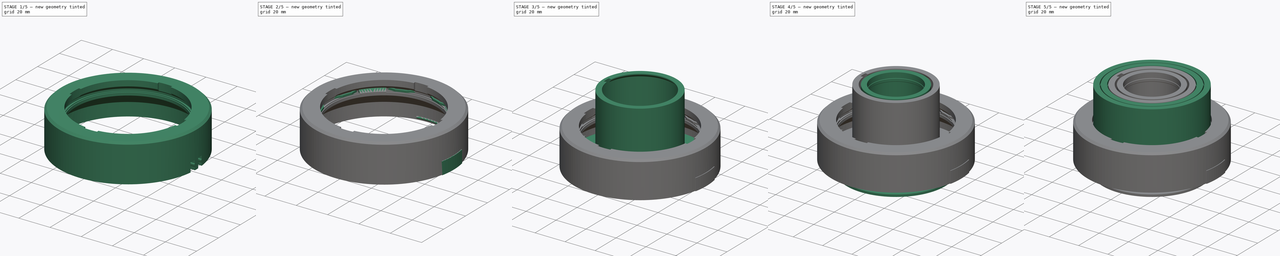
[diagram: build sequence overview — one tinted view per stage of 5, left to right]
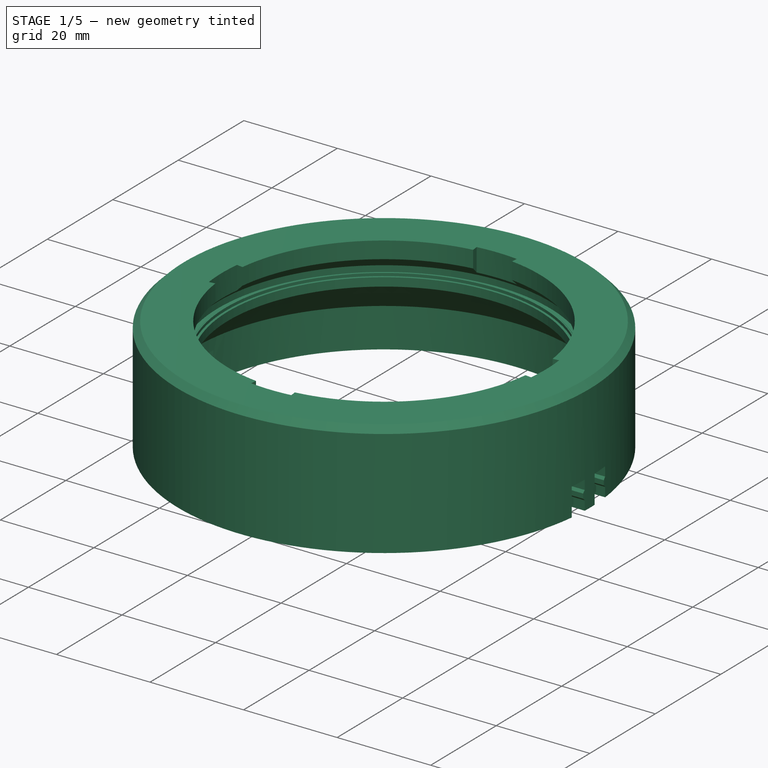
[diagram: stage 1 of 5 — iso view after this stage's code; geometry added in this stage tinted green]
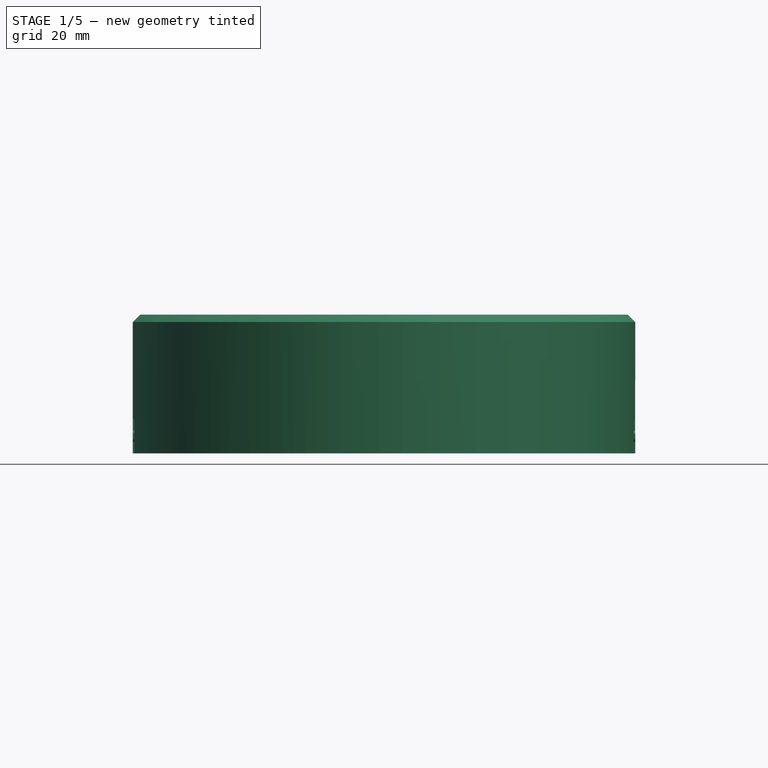
[diagram: stage 1 of 5 — front view after this stage's code; geometry added in this stage tinted green]
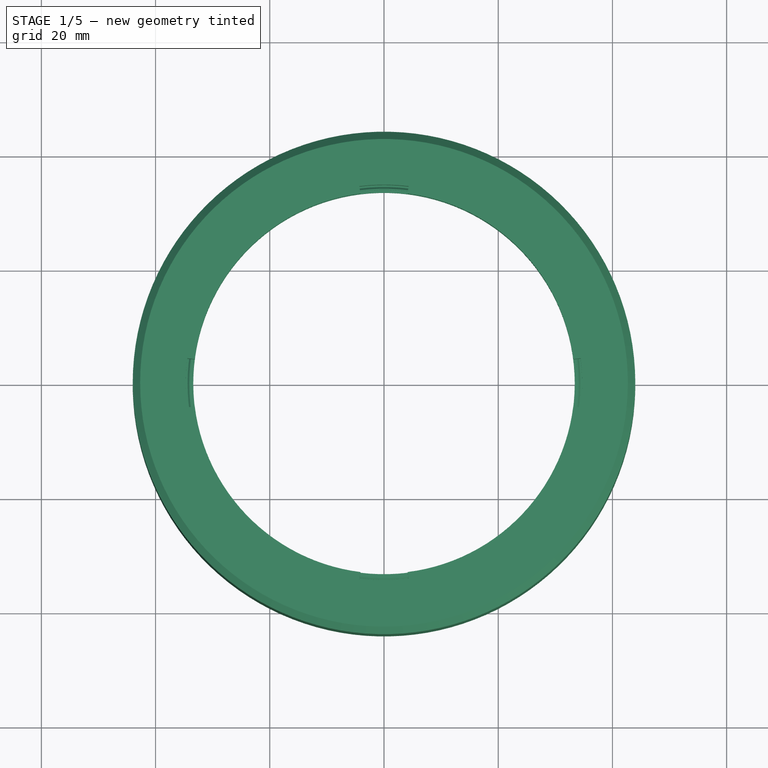
[diagram: stage 1 of 5 — top view after this stage's code; geometry added in this stage tinted green]
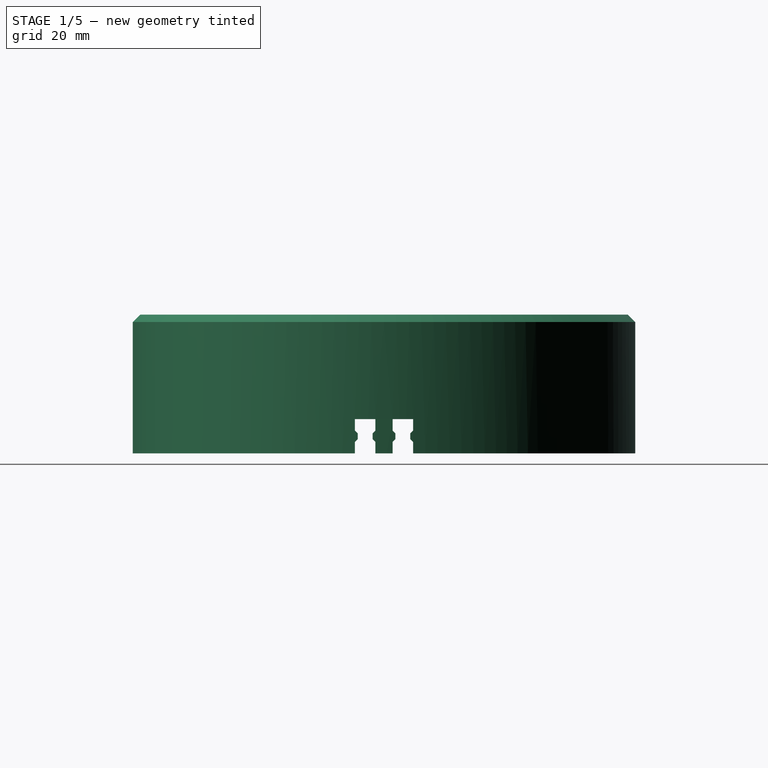
[diagram: stage 1 of 5 — right view after this stage's code; geometry added in this stage tinted green]
FCSTD DOCUMENT  (FreeCAD 0.21R33771 (Git))
Label: the-poor-mans-telescope-tube
License: Attribution-NonCommercial 3.0 Unported (CC BY-NC 3.0)
LicenseURL: http://en.wikipedia.org/wiki/All_rights_reserved
objects: Sketcher::SketchObject×22, PartDesign::Revolution×9, PartDesign::Body×7, PartDesign::Pad×7, PartDesign::PolarPattern×5, PartDesign::Groove×4, PartDesign::Mirrored×4, PartDesign::ShapeBinder×3, App::Part×3, PartDesign::Plane×3, TechDraw::DrawViewSymbol×3, PartDesign::Pocket×2, Spreadsheet::Sheet×1, TechDraw::DrawSVGTemplate×1, TechDraw::DrawPage×1, PartDesign::MultiTransform×1
note: 89 computed .brp shape members not serialized (recipe doc carries the construction recipe); baked Part::Feature solids carry a one-line shape summary decoded from their .brp

FEATURE [PartDesign::Body] Body003  label="tube-third-section"
  Group = -> [Sketch002,Revolution002,Sketch003,Groove,PolarPattern]
  Origin = -> Origin004
  Tip = -> PolarPattern
FEATURE [Sketcher::SketchObject] Sketch034
  FullyConstrained = true
  MapMode = 5
  Placement = pos=(0,0,0) rot=(1,0,0;1.5708rad)
  Support = -> [XZ_Plane013]
  expr: Constraints[10] = Spreadsheet.wall_thickness * 2
  expr: Constraints[11] = Spreadsheet.objective_inner_radius
  expr: Constraints[15] = Spreadsheet.snap_joint_angle
  expr: Constraints[17] = Spreadsheet.obective_lens_holder_radius - Spreadsheet.objective_inner_radius
  expr: Constraints[18] = Spreadsheet.objective_lens_thickness + 2 + Spreadsheet.objective_lens_additional_heigth
  expr: Constraints[9] = Spreadsheet.snap_joint_angle
  sketch-geometry (16):
    g0: LineSegment StartX=-40.4 StartY=0 StartZ=0 EndX=-40.4 EndY=8.4 EndZ=0
    g1: LineSegment StartX=-33.4 StartY=24.3 StartZ=0 EndX=-42.7 EndY=24.3 EndZ=0
    g2: LineSegment StartX=-42.7 StartY=24.3 StartZ=0 EndX=-44 EndY=23 EndZ=0
    g3: LineSegment StartX=-44 StartY=23 StartZ=0 EndX=-44 EndY=0 EndZ=0
    g4: LineSegment StartX=-44 StartY=0 StartZ=0 EndX=-40.4 EndY=0 EndZ=0
    g5: LineSegment StartX=-33.4 StartY=20.7 StartZ=0 EndX=-35.6 EndY=18.5 EndZ=0
    g6: LineSegment StartX=-33.4 StartY=17.2 StartZ=0 EndX=-33.4 EndY=15.4 EndZ=0
    g7: LineSegment StartX=-40.4 StartY=8.4 StartZ=0 EndX=-33.4 EndY=15.4 EndZ=0
    g8: LineSegment StartX=-33.4 StartY=20.7 StartZ=0 EndX=-33.4 EndY=24.3 EndZ=0
    g9: LineSegment StartX=-35.6 StartY=17.2 StartZ=0 EndX=-35.6 EndY=18.5 EndZ=0
    g10: LineSegment StartX=-35.6 StartY=17.2 StartZ=0 EndX=-34.4 EndY=17.2 EndZ=0
    g11: LineSegment StartX=-34.4 StartY=17.2 StartZ=0 EndX=-34.4 EndY=17.5 EndZ=0
    g12: LineSegment StartX=-33.9 StartY=17.8 StartZ=0 EndX=-33.9 EndY=17.2 EndZ=0
    g13: LineSegment StartX=-33.9 StartY=17.2 StartZ=0 EndX=-33.4 EndY=17.2 EndZ=0
    g14: LineSegment StartX=-33.9 StartY=17.8 StartZ=0 EndX=-34.1 EndY=17.8 EndZ=0
    g15: LineSegment StartX=-34.1 StartY=17.8 StartZ=0 EndX=-34.4 EndY=17.5 EndZ=0
  constraints (48):
    c: PointOnObject(g0,g-1)
    c: Vertical(g0)
    c: Horizontal(g1)
    c: Coincident(g1,g2)
    c: Coincident(g2,g3)
    c: PointOnObject(g3,g-1)
    c: Vertical(g3)
    c: Coincident(g3,g4)
    c: Coincident(g4,g0)
    c: Angle(g2,g1) = 2.35619
    c: DistanceX(g4,g4) = 3.6
    c: DistanceX(g1,g-1) = 33.4
    c: DistanceY(g2,g1) = 1.3
    c: Coincident(g0,g7)
    c: Coincident(g7,g6)
    c: Angle(g0,g7) = 2.35619
    c: Vertical(g6)
    c: DistanceX(g0,g6) = 7
    c: DistanceY(g0,g0) = 8.4
    c: Coincident(g8,g5)
    c: Coincident(g8,g1)
    c: Vertical(g8)
    c: DistanceY(g6,g6) = 1.8
    c: Angle(g8,g5) = 2.35619
    c: Vertical(g9)
    c: DistanceY(g9,g9) = 1.3
    c: Coincident(g9,g10)
    c: Horizontal(g10)
    c: Horizontal(g12,g10)
    c: Coincident(g10,g11)
    c: Vertical(g11)
    c: Vertical(g12)
    c: Vertical(g6,g5)
    c: DistanceY(g12,g5) = 2.9
    c: Coincident(g9,g5)
    c: Horizontal(g10,g6)
    c: DistanceX(g11,g12) = 0.5
    c: Coincident(g13,g12)
    c: Coincident(g13,g6)
    c: DistanceX(g13,g13) = 0.5
    c: DistanceY(g11,g11) = 0.3
    c: DistanceY(g12,g12) = 0.6
    c: Coincident(g14,g12)
    c: Horizontal(g14)
    c: Coincident(g15,g14)
    c: Coincident(g15,g11)
    c: DistanceX(g14,g14) = 0.2
    c: DistanceY(g8,g8) = 3.6
FEATURE [PartDesign::Revolution] Revolution023
  Angle = 360
  Axis = (0,-2e-16,1)
  Base = (0,0,0)
  Placement = pos=(0,0,0) rot=(1,0,0;1.5708rad)
  Profile = -> Sketch034
  ReferenceAxis = -> Sketch034 [V_Axis]
FEATURE [Sketcher::SketchObject] Sketch035
  FullyConstrained = true
  MapMode = 5
  Placement = pos=(0,0,0) rot=(0.57735,0.57735,0.57735;2.0944rad)
  Support = -> [YZ_Plane013]
  expr: Constraints[23] = Spreadsheet.snap_joint_angle
  sketch-geometry (12):
    g0: LineSegment StartX=-1.5 StartY=0 StartZ=0 EndX=-1.5 EndY=2 EndZ=0
    g1: LineSegment StartX=-1.5 StartY=2 StartZ=0 EndX=-2 EndY=2.5 EndZ=0
    g2: LineSegment StartX=-2 StartY=2.5 StartZ=0 EndX=-2 EndY=3.5 EndZ=0
    g3: LineSegment StartX=-1.5 StartY=4 StartZ=0 EndX=-1.5 EndY=6 EndZ=0
    g4: LineSegment StartX=-1.5 StartY=6 StartZ=0 EndX=-5.1 EndY=6 EndZ=0
    g5: LineSegment StartX=-5.1 StartY=6 StartZ=0 EndX=-5.1 EndY=4 EndZ=0
    g6: LineSegment StartX=-5.1 StartY=4 StartZ=0 EndX=-4.6 EndY=3.5 EndZ=0
    g7: LineSegment StartX=-4.6 StartY=3.5 StartZ=0 EndX=-4.6 EndY=2.5 EndZ=0
    g8: LineSegment StartX=-4.6 StartY=2.5 StartZ=0 EndX=-5.1 EndY=2 EndZ=0
    g9: LineSegment StartX=-5.1 StartY=2 StartZ=0 EndX=-5.1 EndY=0 EndZ=0
    g10: LineSegment StartX=-5.1 StartY=0 StartZ=0 EndX=-1.5 EndY=0 EndZ=0
    g11: LineSegment StartX=-2 StartY=3.5 StartZ=0 EndX=-1.5 EndY=4 EndZ=0
  constraints (36):
    c: PointOnObject(g0,g-1)
    c: Vertical(g0)
    c: Coincident(g0,g1)
    c: Coincident(g1,g2)
    c: Vertical(g2)
    c: Vertical(g3)
    c: Coincident(g3,g4)
    c: Horizontal(g4)
    c: Coincident(g4,g5)
    c: Vertical(g5)
    c: Coincident(g5,g6)
    c: Coincident(g6,g7)
    c: Vertical(g7)
    c: Coincident(g7,g8)
    c: Coincident(g8,g9)
    c: PointOnObject(g9,g-1)
    c: Vertical(g9)
    c: Coincident(g9,g10)
    c: Coincident(g10,g0)
    c: DistanceY(g9,g9) = 2
    c: Equal(g9,g0)
    c: Equal(g0,g5)
    c: Equal(g5,g3)
    c: Angle(g9,g8) = 2.35619
    c: DistanceY(g9,g4) = 6
    c: Vertical(g8,g5)
    c: Coincident(g11,g2)
    c: Coincident(g11,g3)
    c: Horizontal(g6,g2)
    c: DistanceX(g6,g2) = 2.6
    c: Equal(g8,g6)
    c: Equal(g6,g11)
    c: Equal(g11,g1)
    c: Equal(g7,g2)
    c: DistanceY(g7,g7) = 1
    c: DistanceX(g0,g-1) = 1.5
FEATURE [PartDesign::Pocket] Pocket
  BaseFeature = -> Revolution023
  Direction = (-1,2e-16,-3e-16)
  Length = 5
  Length2 = 5
  Midplane = true
  Placement = pos=(0,0,0) rot=(1,0,0;1.5708rad)
  Profile = -> Sketch035
  ReferenceAxis = -> Sketch035 [N_Axis]
  Type = 1
FEATURE [PartDesign::Mirrored] Mirrored009
  BaseFeature = -> Pocket
  MirrorPlane = -> Sketch035 [V_Axis]
  Originals = -> [Pocket]
  Placement = pos=(0,0,0) rot=(1,0,0;1.5708rad)
FEATURE [PartDesign::Body] Body007  label="objective_lens_holder"
  Group = -> [Sketch040,Sketch039,ShapeBinder001,Sketch041,ShapeBinder002,Sketch042,Pad,Revolution025,Mirrored,Groove002,Revolution026,PolarPattern003]
  Origin = -> Origin014
  Placement = pos=(88.6,0,0) rot=(0,0,1;0rad)
  Tip = -> PolarPattern003
  expr: .Placement.Base.x = (Spreadsheet.obective_lens_holder_radius + Spreadsheet.wall_thickness * 2) * 2 + Spreadsheet.gap
FEATURE [Sketcher::SketchObject] Sketch053
  ExternalGeometry = -> [Sketch034]
  FullyConstrained = true
  MapMode = 5
  Support = -> [XY_Plane013]
  expr: Constraints[11] = <<Spreadsheet>>.wall_thickness
  sketch-geometry (5):
    g0: ArcOfCircle CenterX=0 CenterY=0 CenterZ=0 NormalX=0 NormalY=0 NormalZ=1 AngleXU=0 Radius=42.7 StartAngle=2.92923 EndAngle=3.14159
    g1: ArcOfCircle CenterX=0 CenterY=0 CenterZ=0 NormalX=0 NormalY=0 NormalZ=1 AngleXU=0 Radius=42.7 StartAngle=3.14159 EndAngle=3.35396
    g2: ArcOfCircle CenterX=0 CenterY=0 CenterZ=0 NormalX=0 NormalY=0 NormalZ=1 AngleXU=0 Radius=44.4612 StartAngle=2.93776 EndAngle=3.34542
    g3: LineSegment StartX=-43.5407 StartY=9 StartZ=0 EndX=-41.7407 EndY=9 EndZ=0
    g4: LineSegment StartX=-43.5407 StartY=-9 StartZ=0 EndX=-41.7407 EndY=-9 EndZ=0
  constraints (14):
    c: Coincident(g0,g-1)
    c: Coincident(g0,g-3)
    c: Coincident(g1,g0)
    c: Coincident(g1,g0)
    c: Coincident(g2,g0)
    c: Coincident(g3,g2)
    c: Coincident(g3,g0)
    c: Coincident(g4,g2)
    c: Coincident(g4,g1)
    c: Horizontal(g4)
    c: Horizontal(g3)
    c: DistanceX(g3,g3) = 1.8
    c: DistanceY(g-1,g0) = 9
    c: DistanceY(g1,g-1) = 9
FEATURE [PartDesign::Groove] Groove001
  Angle = 14.25
  Axis = (0,-2e-16,1)
  Base = (0,0,0)
  BaseFeature = -> Mirrored009
  Midplane = true
  Placement = pos=(0,0,0) rot=(1,0,0;1.5708rad)
  Profile = -> Sketch036
  ReferenceAxis = -> Sketch036 [V_Axis]
  Reversed = true
  expr: Angle = 90 ° - (360 ° / 4 - 360 ° / 32) + 3 °
FEATURE [PartDesign::PolarPattern] PolarPattern001
  Angle = 360
  Axis = -> Z_Axis013
  BaseFeature = -> Groove001
  Occurrences = 4
  Originals = -> [Groove001]
  Placement = pos=(0,0,0) rot=(1,0,0;1.5708rad)
FEATURE [PartDesign::Revolution] Revolution024
  Angle = 20
  Axis = (-2e-16,3e-16,1)
  Base = (0,0,0)
  BaseFeature = -> PolarPattern001
  Midplane = true
  Placement = pos=(0,0,0) rot=(1,0,0;1.5708rad)
  Profile = -> Sketch037
  ReferenceAxis = -> Sketch037 [V_Axis]
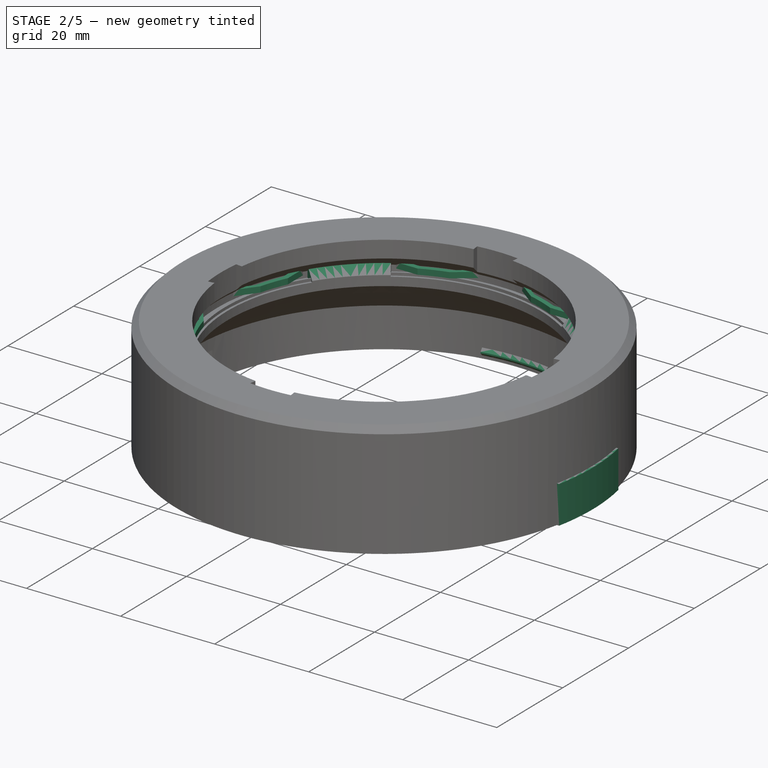
[diagram: stage 2 of 5 — iso view after this stage's code; geometry added in this stage tinted green]
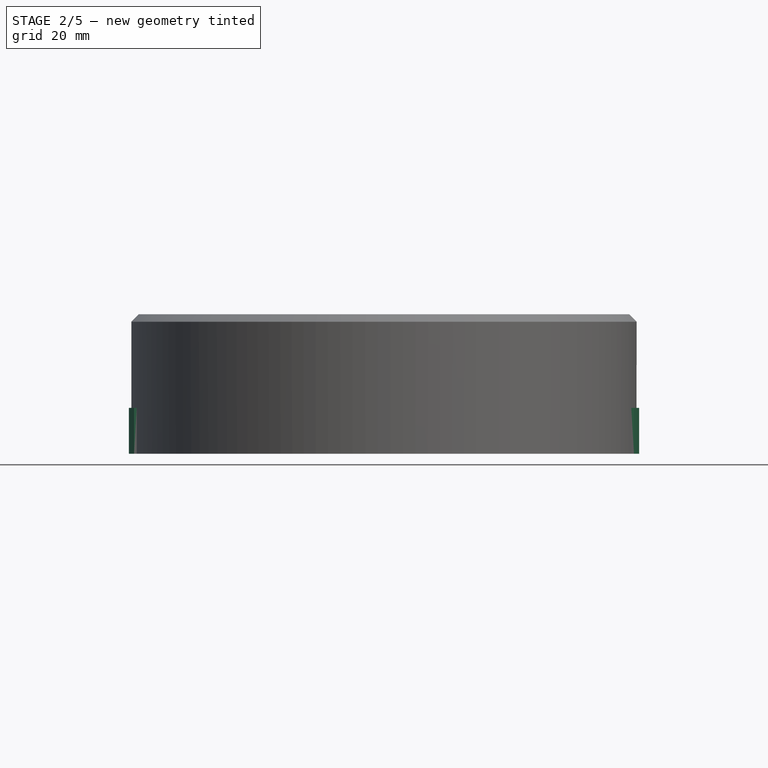
[diagram: stage 2 of 5 — front view after this stage's code; geometry added in this stage tinted green]
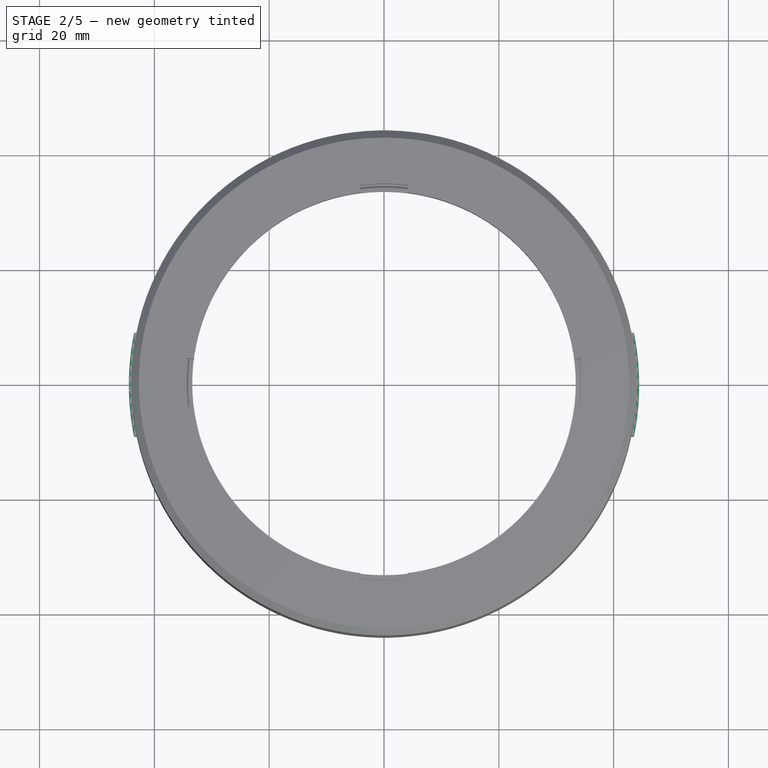
[diagram: stage 2 of 5 — top view after this stage's code; geometry added in this stage tinted green]
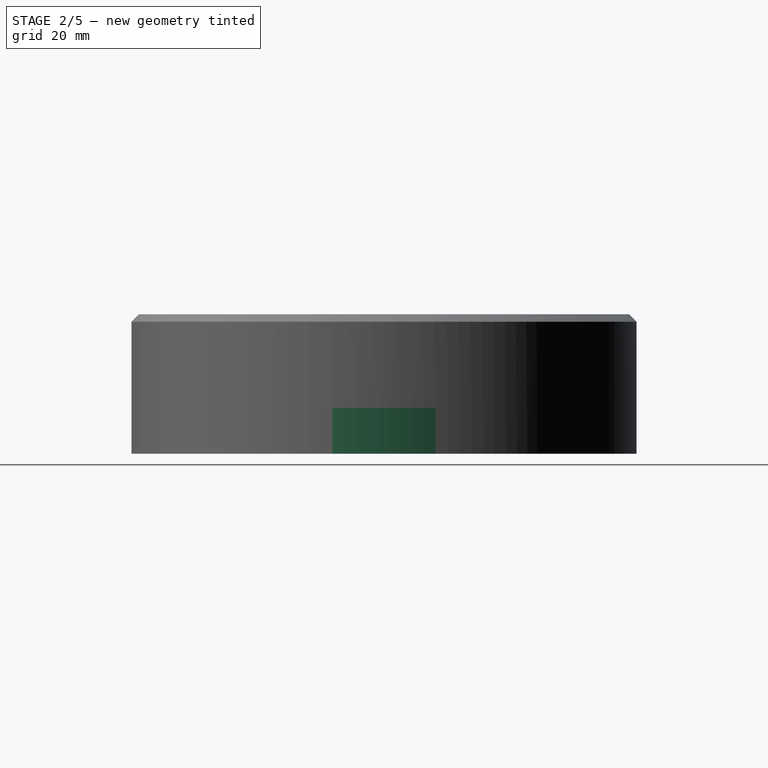
[diagram: stage 2 of 5 — right view after this stage's code; geometry added in this stage tinted green]
FEATURE [PartDesign::PolarPattern] PolarPattern002
  Angle = 360
  Axis = -> Z_Axis013
  BaseFeature = -> Revolution024
  Occurrences = 2
  Originals = -> [Revolution024]
  Placement = pos=(0,0,0) rot=(1,0,0;1.5708rad)
FEATURE [PartDesign::Pad] Pad007
  BaseFeature = -> PolarPattern002
  Direction = (0,0,1)
  Length = 8
  Length2 = 10
  Placement = pos=(0,0,0) rot=(1,0,0;1.5708rad)
  Profile = -> Sketch053
  ReferenceAxis = -> Sketch053 [N_Axis]
  Type = 0
FEATURE [PartDesign::Mirrored] Mirrored010
  BaseFeature = -> Pad007
  MirrorPlane = -> Sketch053 [V_Axis]
  Originals = -> [Pad007]
  Placement = pos=(0,0,0) rot=(1,0,0;1.5708rad)
FEATURE [Sketcher::SketchObject] Sketch055
  ExternalGeometry = -> [Sketch034]
  FullyConstrained = true
  MapMode = 5
  Placement = pos=(0,0,17.8) rot=(0,0,1;3.14159rad)
  Support = -> [Revolution023]
  expr: Constraints[27] = Spreadsheet.objective_inner_radius + 2.2
  sketch-geometry (11):
    g0: ArcOfCircle CenterX=0 CenterY=0 CenterZ=0 NormalX=0 NormalY=0 NormalZ=1 AngleXU=0 Radius=35.6 StartAngle=0 EndAngle=0.122173
    g1: LineSegment StartX=35.3346 StartY=4.33855 StartZ=0 EndX=35.2978 EndY=4.63855 EndZ=0
    g2: LineSegment StartX=35.2978 StartY=4.63855 StartZ=0 EndX=32.2978 EndY=8.61968 EndZ=0
    g3: ArcOfCircle CenterX=0 CenterY=0 CenterZ=0 NormalX=0 NormalY=0 NormalZ=1 AngleXU=0 Radius=33.4282 StartAngle=0.260803 EndAngle=0.435336
    g4: LineSegment StartX=30.3103 StartY=14.0972 StartZ=0 EndX=30.3103 EndY=18.672 EndZ=0
    g5: ArcOfCircle CenterX=0 CenterY=0 CenterZ=0 NormalX=0 NormalY=0 NormalZ=1 AngleXU=0 Radius=34.3954 StartAngle=0.253306 EndAngle=0.422297
    g6: LineSegment StartX=31.3738 StartY=14.0972 StartZ=0 EndX=31.3738 EndY=16.824 EndZ=0
    g7: LineSegment StartX=33.2978 StartY=8.61968 StartZ=0 EndX=36.3063 EndY=4.62726 EndZ=0
    g8: ArcOfCircle CenterX=0 CenterY=0 CenterZ=0 NormalX=0 NormalY=0 NormalZ=1 AngleXU=0 Radius=36.6 StartAngle=0 EndAngle=0.126767
    g9: LineSegment StartX=35.6 StartY=0 StartZ=0 EndX=36.6 EndY=0 EndZ=0
    g10: ArcOfCircle CenterX=0 CenterY=0 CenterZ=0 NormalX=0 NormalY=0 NormalZ=1 AngleXU=0 Radius=35.6 StartAngle=0.492222 EndAngle=0.552121
  constraints (31):
    c: Coincident(g0,g-1)
    c: Tangent(g1,g0) = -1.5708
    c: Coincident(g2,g1)
    c: Coincident(g3,g0)
    c: Coincident(g3,g2)
    c: Angle(g0) = 0.122173
    c: DistanceY(g0,g1) = 0.3
    c: Angle(g2,g1) = 2.61799
    c: Angle(g3) = 0.174533
    c: Coincident(g4,g3)
    c: Coincident(g5,g0)
    c: Coincident(g6,g5)
    c: Coincident(g7,g5)
    c: DistanceX(g2,g5) = 1
    c: Horizontal(g5,g2)
    c: Horizontal(g3,g5)
    c: Parallel(g6,g4)
    c: Coincident(g8,g0)
    c: Parallel(g7,g2)
    c: Coincident(g7,g8)
    c: Coincident(g9,g0)
    c: Coincident(g9,g8)
    c: Horizontal(g9)
    c: DistanceX(g2,g1) = 3
    c: Coincident(g10,g0)
    c: Coincident(g10,g6)
    c: Coincident(g10,g4)
    c: Radius(g10) = 35.6
    c: Vertical(g4,g3)
    c: DistanceX(g9,g9) = 1
    c: Coincident(g0,g-7)
FEATURE [PartDesign::Pad] Pad008
  BaseFeature = -> Mirrored010
  Direction = (0,-2e-16,1)
  Length = 1.2
  Length2 = 10
  Placement = pos=(0,0,0) rot=(1,0,0;1.5708rad)
  Profile = -> Sketch055
  ReferenceAxis = -> Sketch055 [N_Axis]
  Type = 0
FEATURE [PartDesign::Plane] DatumPlane002
  AttachmentOffset = pos=(0,0,0) rot=(0,1,0;0.785398rad)
  Length = 82.6027
  MapMode = 2
  Placement = pos=(0,0,0) rot=(0.862856,0.357407,0.357407;1.71777rad)
  ResizeMode = 0
  Support = -> [Pad008]
  Width = 61.8921
FEATURE [Sketcher::SketchObject] Sketch056
  ExternalGeometry = -> [Sketch034]
  FullyConstrained = true
  MapMode = 5
  Placement = pos=(0,0,0) rot=(0.862856,0.357407,0.357407;1.71777rad)
  Support = -> [DatumPlane002]
  expr: Constraints[5] = Spreadsheet.objective_inner_radius
  sketch-geometry (4):
    g0: LineSegment StartX=-35.6 StartY=17.2 StartZ=0 EndX=-33.4 EndY=17.2 EndZ=0
    g1: LineSegment StartX=-35.6 StartY=19.7 StartZ=0 EndX=-35.6 EndY=17.2 EndZ=0
    g2: LineSegment StartX=-33.4 StartY=17.2 StartZ=0 EndX=-33.4 EndY=17.5 EndZ=0
    g3: LineSegment StartX=-33.4 StartY=17.5 StartZ=0 EndX=-35.6 EndY=19.7 EndZ=0
  constraints (12):
    c: Horizontal(g0)
    c: Coincident(g1,g0)
    c: Horizontal(g0,g-3)
    c: DistanceX(g0,g0) = 2.2
    c: Vertical(g1)
    c: DistanceX(g0,g-1) = 33.4
    c: Coincident(g2,g0)
    c: Vertical(g2)
    c: Coincident(g3,g2)
    c: Coincident(g3,g1)
    c: Angle(g3,g0) = 0.785398
    c: DistanceY(g2,g2) = 0.3
FEATURE [PartDesign::Revolution] Revolution028
  Angle = 12
  Axis = (1e-16,-3e-16,1)
  Base = (0,0,0)
  BaseFeature = -> Pad008
  Placement = pos=(0,0,0) rot=(1,0,0;1.5708rad)
  Profile = -> Sketch056
  ReferenceAxis = -> Sketch056 [V_Axis]
  Reversed = true
FEATURE [PartDesign::Mirrored] Mirrored011
  MirrorPlane = -> DatumPlane002
  Placement = pos=(0,0,0) rot=(1,0,0;1.5708rad)
FEATURE [PartDesign::PolarPattern] PolarPattern004
  Angle = 360
  Axis = -> Sketch055 [N_Axis]
  Occurrences = 4
  Placement = pos=(0,0,0) rot=(1,0,0;1.5708rad)
FEATURE [PartDesign::MultiTransform] MultiTransform
  BaseFeature = -> Revolution028
  Originals = -> [Pad008,Revolution028]
  Placement = pos=(0,0,0) rot=(1,0,0;1.5708rad)
  Transformations = -> [Mirrored011,PolarPattern004]
FEATURE [PartDesign::Body] Body006  label="objective"
  Group = -> [Sketch034,Revolution023,Sketch035,Pocket,Mirrored009,Sketch036,Groove001,PolarPattern001,Sketch037,Revolution024,PolarPattern002,Sketch053,Pad007,Mirrored010,Sketch055,Pad008,DatumPlane002,Sketch056,Revolution028,MultiTransform,Mirrored011,PolarPattern004]
  Origin = -> Origin013
  Tip = -> MultiTransform
FEATURE [App::Part] Part002  label="Objective"
  Group = -> [Body006,Body007]
  Origin = -> Origin012
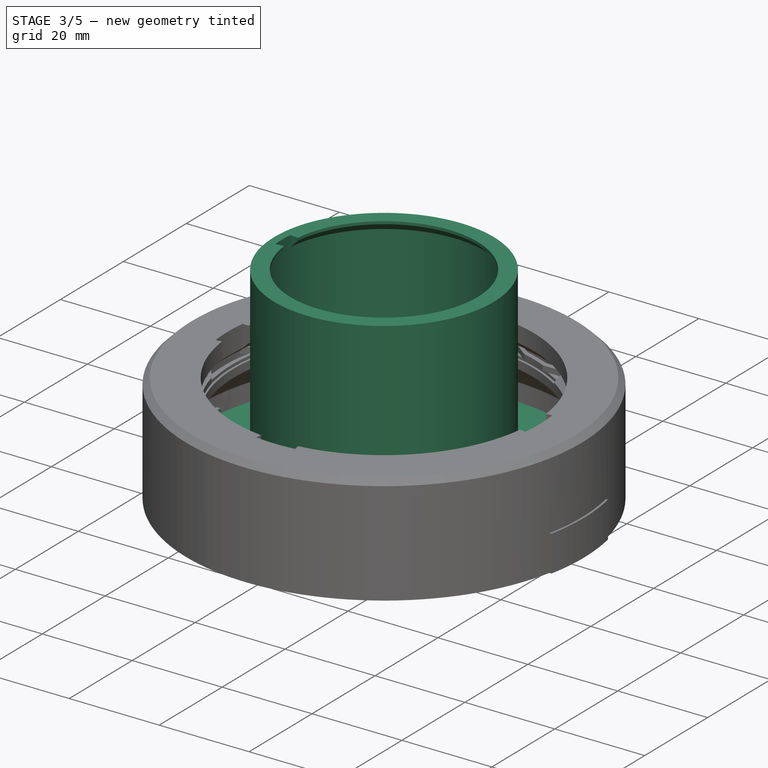
[diagram: stage 3 of 5 — iso view after this stage's code; geometry added in this stage tinted green]
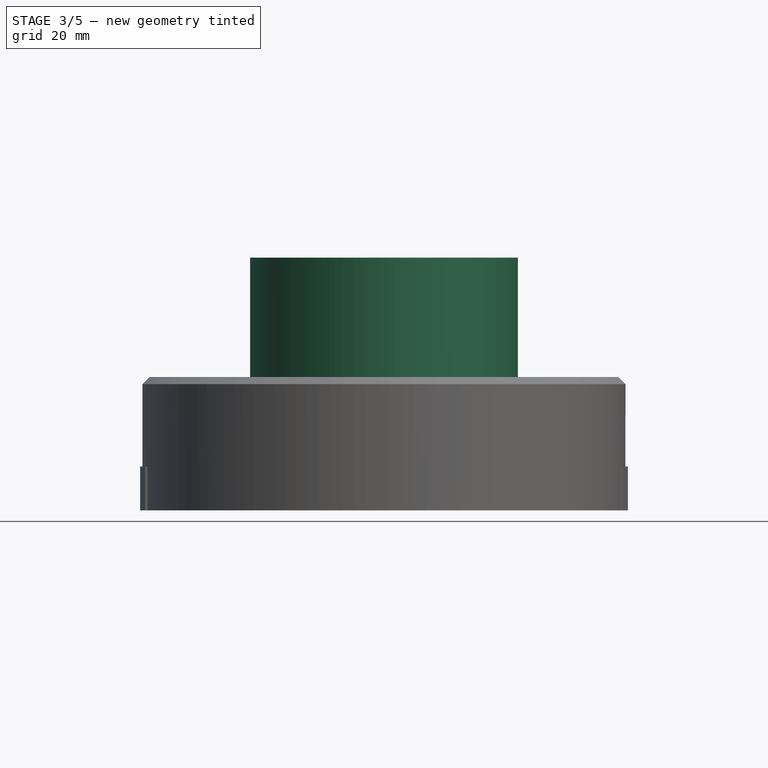
[diagram: stage 3 of 5 — front view after this stage's code; geometry added in this stage tinted green]
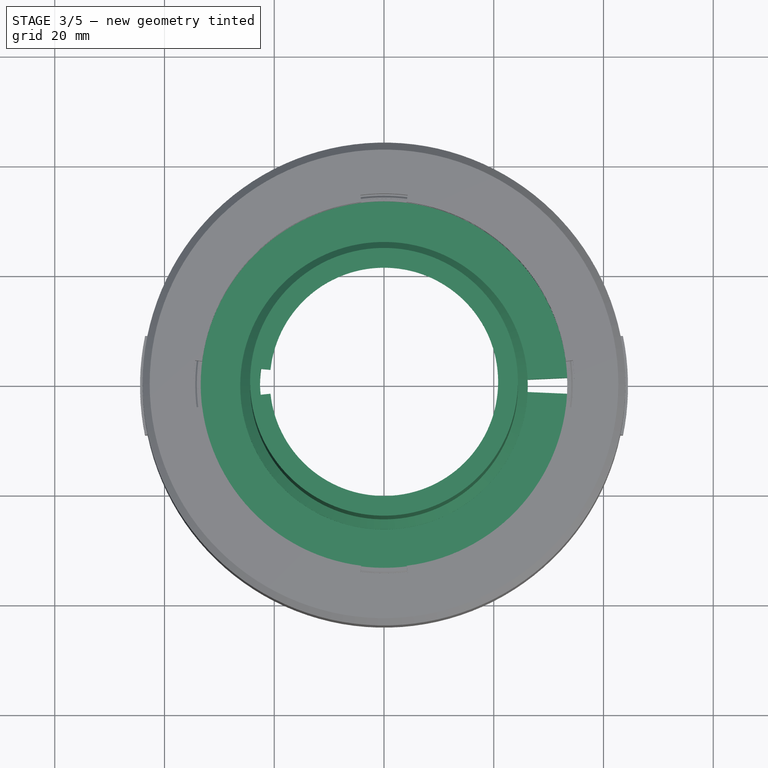
[diagram: stage 3 of 5 — top view after this stage's code; geometry added in this stage tinted green]
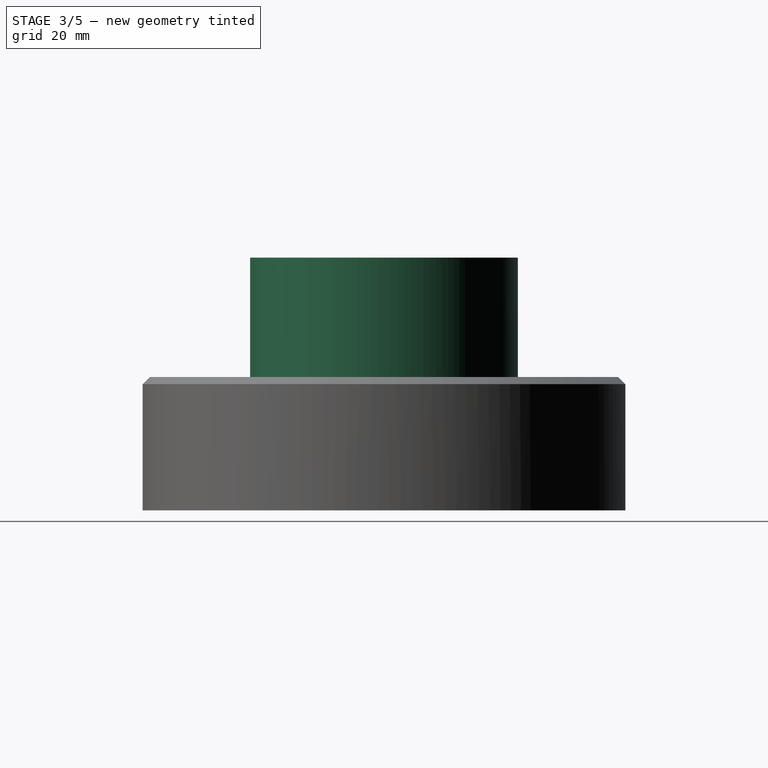
[diagram: stage 3 of 5 — right view after this stage's code; geometry added in this stage tinted green]
FEATURE [Sketcher::SketchObject] Sketch  label="second-section"
  FullyConstrained = true
  MapMode = 5
  Placement = pos=(0,0,0) rot=(1,0,0;1.5708rad)
  Support = -> [XZ_Plane003]
  expr: Constraints[16] = Spreadsheet.wall_thickness * 2
  expr: Constraints[18] = Spreadsheet.wall_thickness
  expr: Constraints[31] = Spreadsheet.wall_thickness * 2
  expr: Constraints[32] = Spreadsheet.wall_thickness
  expr: Constraints[33] = Spreadsheet.snap_joint_angle
  expr: Constraints[34] = Spreadsheet.snap_joint_angle
  expr: Constraints[35] = Spreadsheet.wall_thickness * 1.5
  expr: Constraints[36] = Spreadsheet.wall_thickness
  expr: Constraints[38] = Spreadsheet.snap_joint_angle
  expr: Constraints[40] = Spreadsheet.wall_thickness
  expr: Constraints[43] = Spreadsheet.tube_snap_distance
  expr: Constraints[46] = Spreadsheet.snap_joint_angle
  expr: Constraints[47] = Spreadsheet.snap_joint_angle
  expr: Constraints[49] = Spreadsheet.length_of_tube_section
  expr: Constraints[50] = Spreadsheet.second_tube_section_radius
  sketch-geometry (17):
    g0: LineSegment StartX=-28.6 StartY=46.0667 StartZ=0 EndX=-25 EndY=46.0667 EndZ=0
    g1: LineSegment StartX=-25 StartY=46.0667 StartZ=0 EndX=-25 EndY=44.2667 EndZ=0
    g2: LineSegment StartX=-25 StartY=44.2667 StartZ=0 EndX=-26.8 EndY=42.4667 EndZ=0
    g3: LineSegment StartX=-26.8 StartY=42.4667 StartZ=0 EndX=-26.8 EndY=42.0667 EndZ=0
    g4: LineSegment StartX=-26.8 StartY=42.0667 StartZ=0 EndX=-25.998 EndY=41.2647 EndZ=0
    g5: LineSegment StartX=-25.998 StartY=41.2647 StartZ=0 EndX=-25.998 EndY=40.0647 EndZ=0
    g6: LineSegment StartX=-25.998 StartY=40.0647 StartZ=0 EndX=-26.8 EndY=39.1089 EndZ=0
    g7: LineSegment StartX=-26.8 StartY=39.1089 StartZ=0 EndX=-26.8 EndY=3.6 EndZ=0
    g8: LineSegment StartX=-28.6 StartY=7.2 StartZ=0 EndX=-28.6 EndY=44.2667 EndZ=0
    g9: LineSegment StartX=-28.6 StartY=44.2667 StartZ=0 EndX=-28.6 EndY=46.0667 EndZ=0
    g10: LineSegment StartX=-28.6 StartY=7.2 StartZ=0 EndX=-30.4 EndY=5.4 EndZ=0
    g11: LineSegment StartX=-30.4 StartY=5.4 StartZ=0 EndX=-30.4 EndY=4.5 EndZ=0
    g12: LineSegment StartX=-30.4 StartY=4.5 StartZ=0 EndX=-28.6 EndY=2.7 EndZ=0
    g13: LineSegment StartX=-28.6 StartY=2.7 StartZ=0 EndX=-28.6 EndY=0 EndZ=0
    g14: LineSegment StartX=-28.6 StartY=0 StartZ=0 EndX=-25 EndY=0 EndZ=0
    g15: LineSegment StartX=-25 StartY=0 StartZ=0 EndX=-25 EndY=1.8 EndZ=0
    g16: LineSegment StartX=-25 StartY=1.8 StartZ=0 EndX=-26.8 EndY=3.6 EndZ=0
  constraints (51):
    c: Horizontal(g0)
    c: Coincident(g0,g1)
    c: Vertical(g1)
    c: Coincident(g1,g2)
    c: Coincident(g2,g3)
    c: Vertical(g3)
    c: Coincident(g3,g4)
    c: Coincident(g4,g5)
    c: Vertical(g5)
    c: Coincident(g5,g6)
    c: Coincident(g6,g7)
    c: Vertical(g7)
    c: Vertical(g8)
    c: Coincident(g8,g9)
    c: Vertical(g9)
    c: Coincident(g0,g9)
    c: DistanceX(g0,g0) = 3.6
    c: Horizontal(g1,g8)
    c: DistanceY(g1,g1) = 1.8
    c: Coincident(g8,g10)
    c: Coincident(g10,g11)
    c: Vertical(g11)
    c: Coincident(g11,g12)
    c: Coincident(g12,g13)
    c: Vertical(g13)
    c: Coincident(g13,g14)
    c: Horizontal(g14)
    c: Coincident(g14,g15)
    c: Vertical(g15)
    c: Coincident(g15,g16)
    c: Coincident(g16,g7)
    c: DistanceX(g14,g14) = 3.6
    c: DistanceY(g15,g15) = 1.8
    c: Angle(g16,g15) = 2.35619
    c: Angle(g12,g13) = 2.35619
    c: DistanceY(g13,g13) = 2.7
    c: DistanceX(g11,g12) = 1.8
    c: DistanceY(g11,g11) = 0.9
    c: Angle(g11,g10) = 2.35619
    c: Vertical(g8,g12)
    c: DistanceX(g7,g15) = 1.8
    c: Angle(g7,g6) = 2.44346
    c: DistanceY(g5,g5) = 1.2
    c: DistanceX(g3,g4) = 0.802
    c: Vertical(g6,g3)
    c: DistanceY(g3,g3) = 0.4
    c: Angle(g4,g3) = 2.35619
    c: Angle(g3,g2) = 2.35619
    c: PointOnObject(g14,g-1)
    c: DistanceY(g8,g8) = 37.0667
    c: DistanceX(g13,g-1) = 28.6
FEATURE [Spreadsheet::Sheet] Spreadsheet
  cells = D1='Thor; E1='K; F1='Edmund; G1='Alega; H1='Alega2; I1='Alega3; A2='Objective focal length; B2(objective_focal_length)=150; D2=500; E2=500; I2=150; A3='Objective lens diameter; B3(objective_lens_diameter)=51.1; D3=51.1; E3=93.3; F3=90.6; G3=49.7; A4='Objctive lens edge thicknes; B4(objective_lens_thickness)=2.4; D4=11.03; E4=16.9; F4=22.3; G4=2.4; A5='Objective holder additional heigth; B5(objective_lens_additional_heigth)=4; F5=9; G5=0; A6='Length of focal point from the end of the tube; B6(length_from_tube_to_focal_point)==94 * objective_focal_length / 500; D6=96; E6=96; E7='size s; F7='size m; A8='Eyepiece holder radius; B8(eyepiece_holder_radius)=22; E8=22; F8=30; A9='Epepiece lens diameter; B9(eyepiece_lens_diameter)=20; G9=13.6; A10='Eyepiece lens thickness; B10(eyepiece_lens_thickness)=1.8; A11='Eyepiece lens focal length; B11(eyepiece_lens_focal_length)=15; A12='Eyepiece radious; B12(eyepiece_radious)==31.75 / 2; C12='The standard is a diamter of 1,25" inch = 3,175 cm; A14='Tube snap distance; B14(tube_snap_distance)=0.802; C14=0.78; A16='Firs tube section radius; B16(first_tube_section_radius)==eyepiece_holder_radius + wall_thickness + gap; A17='Second tube section radius; B17(second_tube_section_radius)==eyepiece_holder_radius + wall_thickness * 3 + gap * 2; A18='Third tube section radius; B18(third_tube_section_radius)==eyepiece_holder_radius + wall_thickness * 5 + gap * 3; A19='Objective inner radius; B19(objective_inner_radius)==third_tube_section_radius + gap; A20='Lens holdr radius; B20(obective_lens_holder_radius)==objective_inner_radius + 7; C20='Increase this value to make the entire objective lens holder wider; A22='Wall thickness; B22(wall_thickness)=1.8; C22=1.2; A23='Snap joint angle; B23(snap_joint_angle)=135; A24='Ovrlap distance of the tube sections; B24(tube_sectoin_overlapp)=4.8; A25='Length from objective lence to tube; B25(length_from_objective_to_tube)=25; D25=15; A26='Number of tube sections; B26(nr_of_tube_sections)=3; A27='Length of tubue sections; B27(length_of_tube_section)==(tube_sectoin_overlapp * nr_of_tube_sections + objective_focal_length - length_from_tube_to_focal_point - length_from_objective_to_tube) / nr_of_tube_sections; C27==length_of_tube_section * 3; A28='The gap between separate parts; B28(gap)=0.6
FEATURE [Sketcher::SketchObject] Sketch001  label="first-section"
  FullyConstrained = true
  MapMode = 5
  Placement = pos=(0,0,0) rot=(1,0,0;1.5708rad)
  Support = -> [XZ_Plane001]
  expr: Constraints[17] = Spreadsheet.wall_thickness
  expr: Constraints[18] = Sketch.Constraints[32]
  expr: Constraints[19] = Sketch.Constraints[34]
  expr: Constraints[20] = Sketch.Constraints[35]
  expr: Constraints[21] = Sketch.Constraints[36]
  expr: Constraints[22] = Sketch.Constraints[37]
  expr: Constraints[23] = Sketch.Constraints[38]
  expr: Constraints[26] = Sketch.Constraints[49]
  expr: Constraints[27] = Spreadsheet.first_tube_section_radius
  expr: Constraints[34] = Spreadsheet.snap_joint_angle
  expr: Constraints[35] = Spreadsheet.wall_thickness
  expr: Constraints[6] = Spreadsheet.wall_thickness * 2
  sketch-geometry (12):
    g0: LineSegment StartX=-24.4 StartY=46.0667 StartZ=0 EndX=-20.8 EndY=46.0667 EndZ=0
    g1: LineSegment StartX=-22.6 StartY=43.6667 StartZ=0 EndX=-22.6 EndY=1.8 EndZ=0
    g2: LineSegment StartX=-24.4 StartY=7.2 StartZ=0 EndX=-24.4 EndY=44.2667 EndZ=0
    g3: LineSegment StartX=-24.4 StartY=44.2667 StartZ=0 EndX=-24.4 EndY=46.0667 EndZ=0
    g4: LineSegment StartX=-24.4 StartY=7.2 StartZ=0 EndX=-26.2 EndY=5.4 EndZ=0
    g5: LineSegment StartX=-26.2 StartY=5.4 StartZ=0 EndX=-26.2 EndY=4.5 EndZ=0
    g6: LineSegment StartX=-26.2 StartY=4.5 StartZ=0 EndX=-24.4 EndY=2.7 EndZ=0
    g7: LineSegment StartX=-24.4 StartY=2.7 StartZ=0 EndX=-24.4 EndY=0 EndZ=0
    g8: LineSegment StartX=-24.4 StartY=0 StartZ=0 EndX=-22.6 EndY=0 EndZ=0
    g9: LineSegment StartX=-22.6 StartY=0 StartZ=0 EndX=-22.6 EndY=1.8 EndZ=0
    g10: LineSegment StartX=-20.8 StartY=46.0667 StartZ=0 EndX=-20.8 EndY=45.4667 EndZ=0
    g11: LineSegment StartX=-20.8 StartY=45.4667 StartZ=0 EndX=-22.6 EndY=43.6667 EndZ=0
  constraints (36):
    c: Horizontal(g0)
    c: Vertical(g1)
    c: Vertical(g2)
    c: Coincident(g2,g3)
    c: Vertical(g3)
    c: Coincident(g0,g3)
    c: DistanceX(g0,g0) = 3.6
    c: Coincident(g2,g4)
    c: Coincident(g4,g5)
    c: Vertical(g5)
    c: Coincident(g5,g6)
    c: Coincident(g6,g7)
    c: Vertical(g7)
    c: Coincident(g7,g8)
    c: Horizontal(g8)
    c: Coincident(g8,g9)
    c: Vertical(g9)
    c: DistanceX(g8,g8) = 1.8
    c: DistanceY(g9,g9) = 1.8
    c: Angle(g6,g7) = 2.35619
    c: DistanceY(g7,g7) = 2.7
    c: DistanceX(g5,g6) = 1.8
    c: DistanceY(g5,g5) = 0.9
    c: Angle(g5,g4) = 2.35619
    c: Vertical(g2,g6)
    c: PointOnObject(g8,g-1)
    c: DistanceY(g2,g2) = 37.0667
    c: DistanceX(g7,g-1) = 24.4
    c: Coincident(g1,g9)
    c: Coincident(g0,g10)
    c: Vertical(g10)
    c: Coincident(g10,g11)
    c: Coincident(g11,g1)
    c: DistanceY(g10,g10) = 0.6
    c: Angle(g1,g11) = 2.35619
    c: DistanceY(g3,g3) = 1.8
FEATURE [PartDesign::Revolution] Revolution
  Angle = 360
  Axis = (0,-2e-16,1)
  Base = (0,0,0)
  Placement = pos=(0,0,0) rot=(1,0,0;1.5708rad)
  Profile = -> Sketch001
  ReferenceAxis = -> Sketch001 [V_Axis]
FEATURE [PartDesign::Body] Body010  label="eos-ef-mount"
  Group = -> [Sketch048,Sketch049,Pad003,Pad004,DatumPlane,Sketch050,Pad005,DatumPlane001,Sketch051,Pad006,Sketch052,Pocket001]
  Origin = -> Origin018
  Placement = pos=(0,-230,0) rot=(0,0,1;0rad)
  Tip = -> Pocket001
FEATURE [TechDraw::DrawSVGTemplate] Template
  Height = 420
  Orientation = 1
  Width = 594
FEATURE [TechDraw::DrawViewSymbol] ActiveView001
  LockPosition = false
  Rotation = 0
  ScaleType = 0
  Symbol = <blob: 1754262 chars omitted>
  X = 446.192
  Y = 317.895
FEATURE [TechDraw::DrawViewSymbol] ActiveView
  LockPosition = false
  Rotation = 0
  ScaleType = 2
  Symbol = <blob: 1015913 chars omitted>
  X = 446.318
  Y = 110.313
FEATURE [TechDraw::DrawViewSymbol] ActiveView002
  LockPosition = false
  Rotation = 0
  ScaleType = 2
  Symbol = <blob: 1960960 chars omitted>
  X = 153.632
  Y = 241.357
FEATURE [TechDraw::DrawPage] Page
  KeepUpdated = true
  NextBalloonIndex = 1
  ProjectionType = 0
  Template = -> Template
  Views = -> [ActiveView001,ActiveView,ActiveView002]
FEATURE [PartDesign::ShapeBinder] ShapeBinder003
  Support = -> [Sketch001]
  TraceSupport = false
FEATURE [Sketcher::SketchObject] Sketch054
  ExternalGeometry = -> [Sketch001]
  FullyConstrained = true
  MapMode = 5
  Placement = pos=(0,0,0) rot=(1,0,0;1.5708rad)
  Support = -> [XZ_Plane001]
  sketch-geometry (4):
    g0: LineSegment StartX=-20.8 StartY=46.0667 StartZ=0 EndX=-22.6 EndY=46.0667 EndZ=0
    g1: LineSegment StartX=-22.6 StartY=46.0667 StartZ=0 EndX=-22.6 EndY=43.6667 EndZ=0
    g2: LineSegment StartX=-22.6 StartY=43.6667 StartZ=0 EndX=-20.8 EndY=43.6667 EndZ=0
    g3: LineSegment StartX=-20.8 StartY=43.6667 StartZ=0 EndX=-20.8 EndY=46.0667 EndZ=0
  constraints (10):
    c: Coincident(g0,g1)
    c: Coincident(g1,g2)
    c: Coincident(g2,g3)
    c: Coincident(g3,g0)
    c: Horizontal(g0)
    c: Horizontal(g2)
    c: Vertical(g1)
    c: Vertical(g3)
    c: Coincident(g0,g-4)
    c: Coincident(g1,g-3)
FEATURE [PartDesign::Groove] Groove003
  Angle = 12
  Axis = (0,-2e-16,1)
  Base = (0,0,0)
  BaseFeature = -> Revolution
  Midplane = true
  Placement = pos=(0,0,0) rot=(1,0,0;1.5708rad)
  Profile = -> Sketch054
  ReferenceAxis = -> Sketch054 [V_Axis]
  Reversed = true
FEATURE [PartDesign::Body] Body  label="tube-first-section"
  Group = -> [Sketch001,Revolution,ShapeBinder003,Sketch054,Groove003]
  Origin = -> Origin001
  Tip = -> Groove003
FEATURE [App::Part] Part  label="Optical-tube"
  Group = -> [Body,Body002,Body003]
  Origin = -> Origin
FEATURE [PartDesign::ShapeBinder] ShapeBinder001
  Support = -> [Sketch035]
  TraceSupport = false
FEATURE [Sketcher::SketchObject] Sketch040
  ExternalGeometry = -> [ShapeBinder001]
  FullyConstrained = true
  MapMode = 5
  Placement = pos=(0,0,0) rot=(0.57735,0.57735,0.57735;2.0944rad)
  Support = -> [YZ_Plane014]
  sketch-geometry (12):
    g0: LineSegment StartX=-2.1 StartY=5.8 StartZ=0 EndX=-4.6 EndY=5.8 EndZ=0
    g1: LineSegment StartX=-4.6 StartY=5.8 StartZ=0 EndX=-4.6 EndY=4 EndZ=0
    g2: LineSegment StartX=-4.6 StartY=4 StartZ=0 EndX=-4.3 EndY=3.5 EndZ=0
    g3: LineSegment StartX=-4.3 StartY=3.5 StartZ=0 EndX=-4.3 EndY=2.5 EndZ=0
    g4: LineSegment StartX=-4.3 StartY=2.5 StartZ=0 EndX=-4.6 EndY=2 EndZ=0
    g5: LineSegment StartX=-4.6 StartY=2 StartZ=0 EndX=-4.6 EndY=0 EndZ=0
    g6: LineSegment StartX=-2.1 StartY=0 StartZ=0 EndX=-2.1 EndY=2 EndZ=0
    g7: LineSegment StartX=-2.1 StartY=2 StartZ=0 EndX=-2.3 EndY=2.5 EndZ=0
    g8: LineSegment StartX=-2.3 StartY=2.5 StartZ=0 EndX=-2.3 EndY=3.5 EndZ=0
    g9: LineSegment StartX=-2.3 StartY=3.5 StartZ=0 EndX=-2.1 EndY=4 EndZ=0
    g10: LineSegment StartX=-2.1 StartY=4 StartZ=0 EndX=-2.1 EndY=5.8 EndZ=0
    g11: LineSegment StartX=-4.6 StartY=0 StartZ=0 EndX=-2.1 EndY=0 EndZ=0
  constraints (36):
    c: Horizontal(g0)
    c: Coincident(g0,g1)
    c: Vertical(g1)
    c: Coincident(g1,g2)
    c: Coincident(g2,g3)
    c: Vertical(g3)
    c: Coincident(g3,g4)
    c: Coincident(g4,g5)
    c: Vertical(g5)
    c: Vertical(g6)
    c: Coincident(g6,g7)
    c: Coincident(g7,g8)
    c: Vertical(g8)
    c: Coincident(g8,g9)
    c: Coincident(g9,g10)
    c: Coincident(g10,g0)
    c: DistanceY(g0,g-3) = 0.2
    c: DistanceX(g-3,g0) = 0.5
    c: Vertical(g10)
    c: DistanceX(g0,g-4) = 0.6
    c: Horizontal(g-12,g1)
    c: Horizontal(g-11,g2)
    c: DistanceX(g-11,g2) = 0.3
    c: Horizontal(g-10,g3)
    c: Horizontal(g-9,g4)
    c: Horizontal(g6,g-8)
    c: Horizontal(g-7,g7)
    c: DistanceX(g7,g-7) = 0.3
    c: Horizontal(g8,g-6)
    c: Horizontal(g9,g-5)
    c: PointOnObject(g5,g-1)
    c: Coincident(g11,g5)
    c: Coincident(g11,g6)
    c: Horizontal(g11)
    c: Vertical(g4,g1)
    c: Vertical(g9,g6)
FEATURE [PartDesign::Pad] Pad
  Direction = (1,-2e-16,3e-16)
  Length = 85.6
  Length2 = 10
  Midplane = true
  Placement = pos=(0,0,0) rot=(0.57735,0.57735,0.57735;2.0944rad)
  Profile = -> Sketch040
  ReferenceAxis = -> Sketch040 [N_Axis]
  Type = 0
  expr: Length = 2 * (Spreadsheet.obective_lens_holder_radius + Spreadsheet.wall_thickness + Spreadsheet.gap)
FEATURE [PartDesign::Revolution] Revolution025
  Angle = 355
  Axis = (0,-2e-16,1)
  Base = (0,0,0)
  BaseFeature = -> Pad
  Midplane = true
  Placement = pos=(0,0,0) rot=(0.57735,0.57735,0.57735;2.0944rad)
  Profile = -> Sketch039
  ReferenceAxis = -> Sketch039 [V_Axis]
FEATURE [PartDesign::Mirrored] Mirrored
  BaseFeature = -> Revolution025
  MirrorPlane = -> Sketch040 [V_Axis]
  Originals = -> [Pad]
  Placement = pos=(0,0,0) rot=(0.57735,0.57735,0.57735;2.0944rad)
FEATURE [PartDesign::Groove] Groove002
  Angle = 360
  Axis = (0,-2e-16,1)
  Base = (0,0,0)
  BaseFeature = -> Mirrored
  Placement = pos=(0,0,0) rot=(0.57735,0.57735,0.57735;2.0944rad)
  Profile = -> Sketch041
  ReferenceAxis = -> Sketch041 [V_Axis]
  Reversed = true
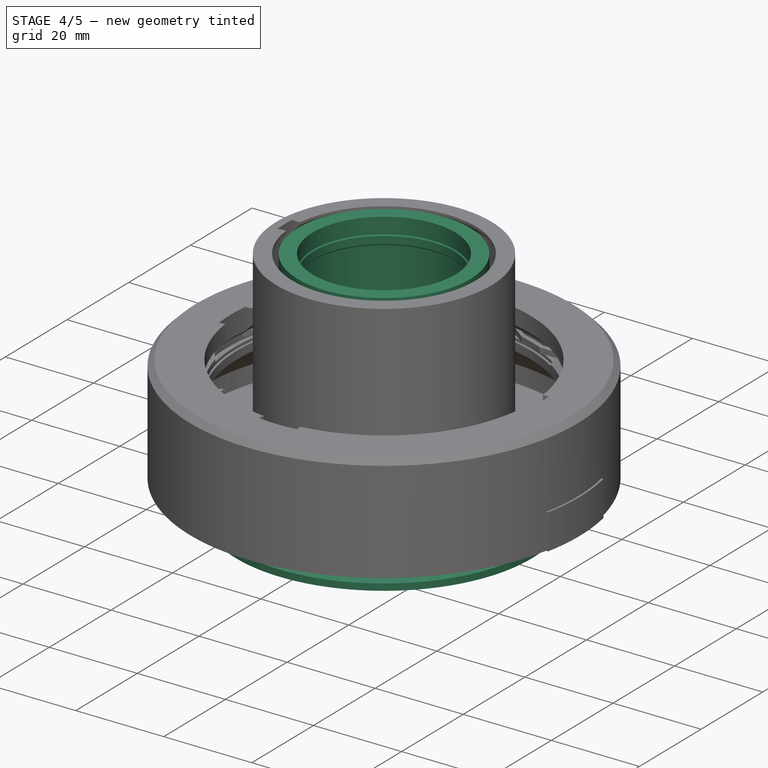
[diagram: stage 4 of 5 — iso view after this stage's code; geometry added in this stage tinted green]
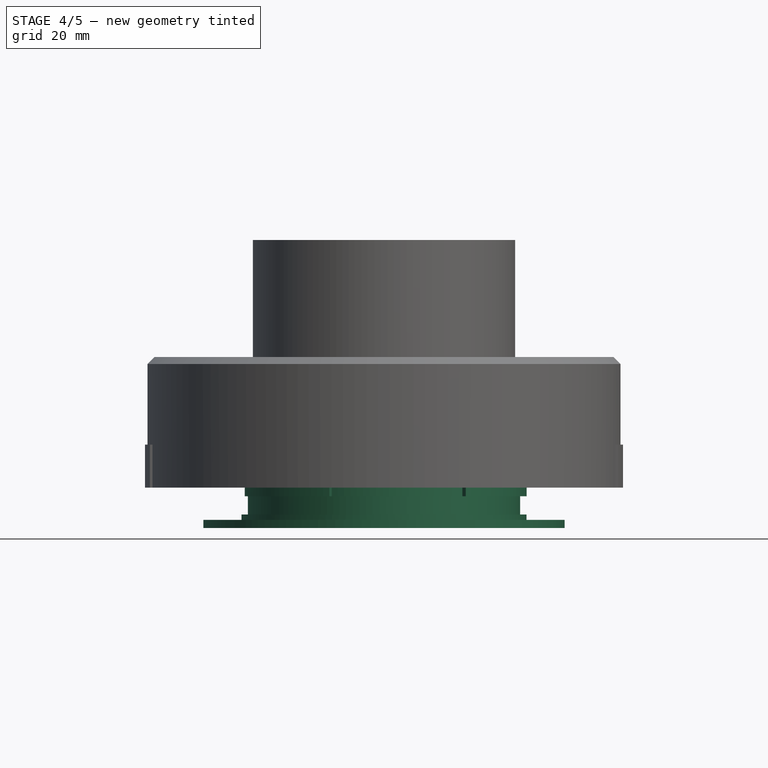
[diagram: stage 4 of 5 — front view after this stage's code; geometry added in this stage tinted green]
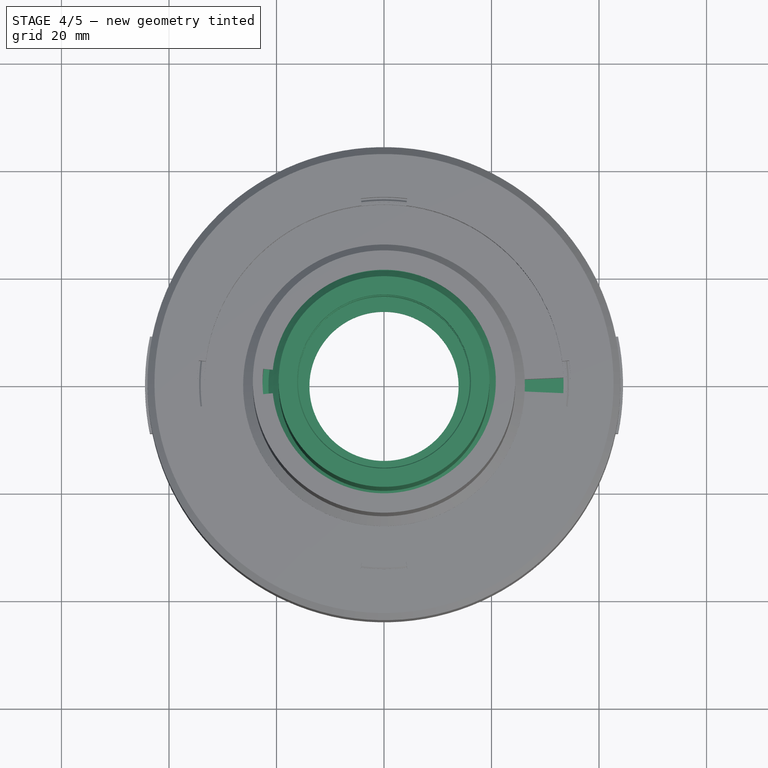
[diagram: stage 4 of 5 — top view after this stage's code; geometry added in this stage tinted green]
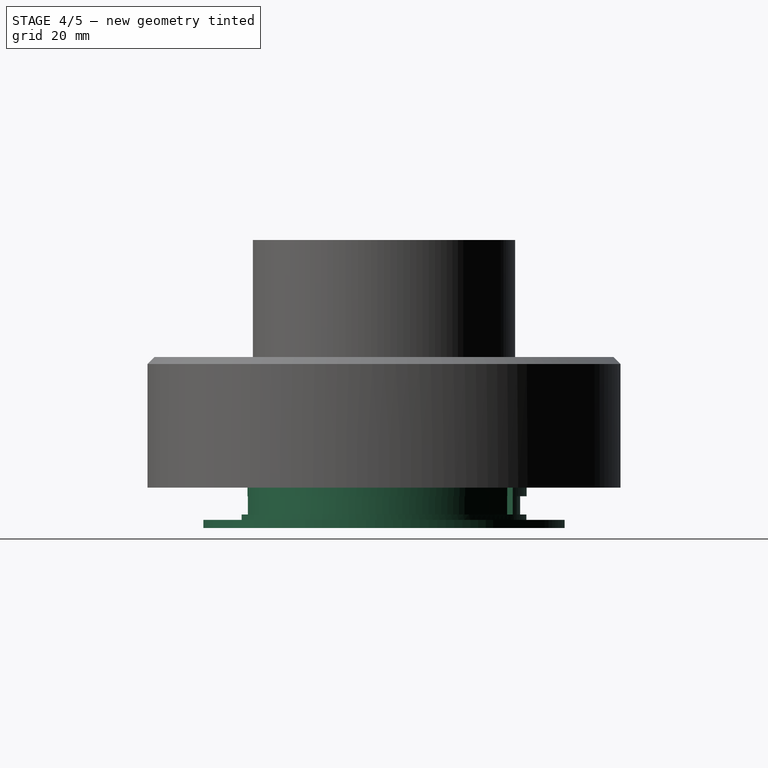
[diagram: stage 4 of 5 — right view after this stage's code; geometry added in this stage tinted green]
FEATURE [Sketcher::SketchObject] Sketch036
  ExternalGeometry = -> [Sketch034]
  FullyConstrained = true
  MapMode = 5
  Placement = pos=(0,0,0) rot=(1,0,0;1.5708rad)
  Support = -> [XZ_Plane013]
  sketch-geometry (4):
    g0: LineSegment StartX=-33.4 StartY=17.8 StartZ=0 EndX=-34.7 EndY=19.1 EndZ=0
    g1: LineSegment StartX=-34.7 StartY=19.1 StartZ=0 EndX=-34.7 EndY=24.3 EndZ=0
    g2: LineSegment StartX=-34.7 StartY=24.3 StartZ=0 EndX=-33.4 EndY=24.3 EndZ=0
    g3: LineSegment StartX=-33.4 StartY=24.3 StartZ=0 EndX=-33.4 EndY=17.8 EndZ=0
  constraints (11):
    c: Coincident(g0,g1)
    c: Vertical(g1)
    c: Coincident(g1,g2)
    c: Horizontal(g2)
    c: Coincident(g2,g3)
    c: Coincident(g3,g0)
    c: DistanceX(g2,g2) = 1.3
    c: DistanceY(g3,g3) = 6.5
    c: Coincident(g2,g-5)
    c: Vertical(g3)
    c: Angle(g3,g0) = 0.785398
FEATURE [Sketcher::SketchObject] Sketch037
  FullyConstrained = true
  MapMode = 5
  Placement = pos=(0,0,0) rot=(0.57735,0.57735,0.57735;2.0944rad)
  Support = -> [YZ_Plane013]
  expr: Constraints[8] = Spreadsheet.obective_lens_holder_radius
  sketch-geometry (4):
    g0: LineSegment StartX=-40.4 StartY=0.6 StartZ=0 EndX=-39.8 EndY=1.2 EndZ=0
    g1: LineSegment StartX=-39.8 StartY=1.2 StartZ=0 EndX=-39.8 EndY=1.5 EndZ=0
    g2: LineSegment StartX=-39.8 StartY=1.5 StartZ=0 EndX=-40.4 EndY=2.1 EndZ=0
    g3: LineSegment StartX=-40.4 StartY=2.1 StartZ=0 EndX=-40.4 EndY=0.6 EndZ=0
  constraints (12):
    c: Coincident(g0,g1)
    c: Coincident(g1,g2)
    c: Coincident(g2,g3)
    c: Coincident(g3,g0)
    c: Vertical(g3)
    c: Vertical(g1)
    c: DistanceY(g1,g1) = 0.3
    c: DistanceY(g-1,g0) = 0.6
    c: DistanceX(g0,g-1) = 40.4
    c: DistanceY(g3,g3) = 1.5
    c: Equal(g2,g0)
    c: Angle(g3,g2) = 0.785398
FEATURE [Sketcher::SketchObject] Sketch039
  FullyConstrained = true
  MapMode = 5
  Placement = pos=(0,0,0) rot=(1,0,0;1.5708rad)
  Support = -> [XZ_Plane014]
  expr: Constraints[12] = Spreadsheet.objective_lens_diameter / 2
  expr: Constraints[14] = Spreadsheet.objective_lens_thickness
  expr: Constraints[15] = Spreadsheet.snap_joint_angle
  expr: Constraints[16] = Spreadsheet.obective_lens_holder_radius - Spreadsheet.gap
  sketch-geometry (8):
    g0: LineSegment StartX=-24.35 StartY=0 StartZ=0 EndX=-24.35 EndY=0.6 EndZ=0
    g1: LineSegment StartX=-24.35 StartY=0.6 StartZ=0 EndX=-25.55 EndY=0.6 EndZ=0
    g2: LineSegment StartX=-39.8 StartY=4.8 StartZ=0 EndX=-39.8 EndY=0 EndZ=0
    g3: LineSegment StartX=-39.8 StartY=0 StartZ=0 EndX=-24.35 EndY=0 EndZ=0
    g4: LineSegment StartX=-25.55 StartY=0.6 StartZ=0 EndX=-25.55 EndY=3 EndZ=0
    g5: LineSegment StartX=-25.55 StartY=3 StartZ=0 EndX=-24.35 EndY=4.2 EndZ=0
    g6: LineSegment StartX=-24.35 StartY=4.2 StartZ=0 EndX=-24.35 EndY=4.8 EndZ=0
    g7: LineSegment StartX=-24.35 StartY=4.8 StartZ=0 EndX=-39.8 EndY=4.8 EndZ=0
  constraints (24):
    c: PointOnObject(g0,g-1)
    c: Coincident(g0,g1)
    c: Horizontal(g1)
    c: PointOnObject(g2,g-1)
    c: Vertical(g2)
    c: Coincident(g2,g3)
    c: Coincident(g3,g0)
    c: Coincident(g1,g4)
    c: Vertical(g4)
    c: Coincident(g4,g5)
    c: DistanceY(g0,g0) = 0.6
    c: Vertical(g0)
    c: DistanceX(g1,g-1) = 25.55
    c: DistanceX(g1,g1) = 1.2
    c: DistanceY(g4,g4) = 2.4
    c: Angle(g4,g5) = 2.35619
    c: DistanceX(g2,g-1) = 39.8
    c: Vertical(g0,g5)
    c: Coincident(g6,g5)
    c: Vertical(g6)
    c: Coincident(g7,g6)
    c: Coincident(g7,g2)
    c: Horizontal(g7)
    c: DistanceY(g6,g6) = 0.6
FEATURE [PartDesign::ShapeBinder] ShapeBinder002
  Support = -> [Sketch039]
  TraceSupport = false
FEATURE [Sketcher::SketchObject] Sketch041
  ExternalGeometry = -> [ShapeBinder002]
  FullyConstrained = true
  MapMode = 5
  Placement = pos=(0,0,0) rot=(1,0,0;1.5708rad)
  Support = -> [XZ_Plane014]
  expr: Constraints[16] = Spreadsheet.obective_lens_holder_radius - Spreadsheet.gap
  sketch-geometry (10):
    g0: LineSegment StartX=-24.35 StartY=4.2 StartZ=0 EndX=-25.55 EndY=3 EndZ=0
    g1: LineSegment StartX=-25.55 StartY=3 StartZ=0 EndX=-25.55 EndY=0.6 EndZ=0
    g2: LineSegment StartX=-25.55 StartY=0.6 StartZ=0 EndX=-24.35 EndY=0.6 EndZ=0
    g3: LineSegment StartX=-24.35 StartY=0.6 StartZ=0 EndX=-24.35 EndY=0 EndZ=0
    g4: LineSegment StartX=-24.35 StartY=0 StartZ=0 EndX=0 EndY=0 EndZ=0
    g5: LineSegment StartX=-24.35 StartY=4.8 StartZ=0 EndX=-39.8 EndY=4.8 EndZ=0
    g6: LineSegment StartX=-39.8 StartY=4.8 StartZ=0 EndX=-39.8 EndY=14.8 EndZ=0
    g7: LineSegment StartX=-39.8 StartY=14.8 StartZ=0 EndX=0 EndY=14.8 EndZ=0
    g8: LineSegment StartX=-24.35 StartY=4.8 StartZ=0 EndX=-24.35 EndY=4.2 EndZ=0
    g9: LineSegment StartX=0 StartY=14.8 StartZ=0 EndX=0 EndY=0 EndZ=0
  constraints (24):
    c: Coincident(g0,g-5)
    c: Coincident(g0,g1)
    c: Coincident(g1,g-6)
    c: Coincident(g1,g2)
    c: Coincident(g2,g-7)
    c: Coincident(g2,g3)
    c: PointOnObject(g3,g-1)
    c: Vertical(g3)
    c: Coincident(g3,g4)
    c: Coincident(g4,g-1)
    c: Horizontal(g5)
    c: Coincident(g5,g6)
    c: Vertical(g6)
    c: Coincident(g6,g7)
    c: PointOnObject(g7,g-2)
    c: Horizontal(g7)
    c: DistanceX(g6,g-1) = 39.8
    c: DistanceY(g6,g6) = 10
    c: Coincident(g-3,g5)
    c: Coincident(g0,g-4)
    c: Coincident(g8,g5)
    c: Coincident(g8,g0)
    c: Coincident(g9,g7)
    c: Coincident(g9,g4)
FEATURE [Sketcher::SketchObject] Sketch042
  FullyConstrained = true
  MapMode = 5
  Placement = pos=(0,0,0) rot=(0.57735,0.57735,0.57735;2.0944rad)
  Support = -> [YZ_Plane014]
  expr: Constraints[15] = 90 + 45
  expr: Constraints[7] = Spreadsheet.obective_lens_holder_radius - Spreadsheet.gap - 0.1
  sketch-geometry (9):
    g0: LineSegment StartX=-40.2 StartY=0.8 StartZ=0 EndX=-39.8 EndY=1.2 EndZ=0
    g1: LineSegment StartX=-39.7 StartY=2.6 StartZ=0 EndX=-39.7 EndY=0.6 EndZ=0
    g2: LineSegment StartX=-40.2 StartY=1.9 StartZ=0 EndX=-39.8 EndY=1.5 EndZ=0
    g3: LineSegment StartX=-39.8 StartY=1.5 StartZ=0 EndX=-39.8 EndY=1.2 EndZ=0
    g4: LineSegment StartX=-40.2 StartY=1.9 StartZ=0 EndX=-40.2 EndY=2.2 EndZ=0
    g5: LineSegment StartX=-40.2 StartY=2.2 StartZ=0 EndX=-39.7 EndY=2.6 EndZ=0
    g6: LineSegment StartX=-39.7 StartY=0.6 StartZ=0 EndX=-39.7 EndY=0 EndZ=0
    g7: LineSegment StartX=-40.2 StartY=0.8 StartZ=0 EndX=-40.2 EndY=0.5 EndZ=0
    g8: LineSegment StartX=-40.2 StartY=0.5 StartZ=0 EndX=-39.7 EndY=0 EndZ=0
  constraints (27):
    c: Vertical(g1)
    c: DistanceY(g-1,g1) = 0.6
    c: Coincident(g3,g2)
    c: Coincident(g3,g0)
    c: Vertical(g3)
    c: DistanceY(g3,g3) = 0.3
    c: DistanceY(g1,g1) = 2
    c: DistanceX(g1,g-1) = 39.7
    c: Coincident(g2,g4)
    c: Coincident(g4,g5)
    c: Coincident(g5,g1)
    c: DistanceX(g2,g1) = 0.5
    c: DistanceY(g4,g4) = 0.3
    c: Vertical(g4)
    c: Vertical(g0,g2)
    c: Angle(g2,g3) = 2.35619
    c: DistanceX(g2,g1) = 0.1
    c: Equal(g2,g0)
    c: DistanceY(g1,g0) = 0.6
    c: PointOnObject(g6,g-1)
    c: Coincident(g6,g1)
    c: Vertical(g6)
    c: Coincident(g0,g7)
    c: Vertical(g7)
    c: Coincident(g7,g8)
    c: Coincident(g8,g6)
    c: DistanceY(g7,g7) = 0.3
FEATURE [Sketcher::SketchObject] Sketch044
  FullyConstrained = true
  MapMode = 5
  Placement = pos=(0,0,0) rot=(1,0,0;1.5708rad)
  Support = -> [XZ_Plane016]
  expr: Constraints[10] = Spreadsheet.length_of_tube_section > 50 ? Spreadsheet.length_of_tube_section : Spreadsheet.length_of_tube_section + 6.2
  expr: Constraints[12] = Spreadsheet.eyepiece_radious + 0.3
  expr: Constraints[39] = 0.2
  expr: Constraints[40] = Spreadsheet.wall_thickness * 2
  expr: Constraints[5] = Spreadsheet.eyepiece_holder_radius - Spreadsheet.gap - Spreadsheet.wall_thickness
  expr: Constraints[6] = Spreadsheet.wall_thickness
  expr: Constraints[7] = Spreadsheet.wall_thickness + 0.1
  expr: Constraints[8] = 0.9 mm
  expr: Constraints[9] = Spreadsheet.snap_joint_angle
  sketch-geometry (19):
    g0: LineSegment StartX=-17.8 StartY=5e-16 StartZ=0 EndX=-21.5 EndY=0 EndZ=0
    g1: LineSegment StartX=-21.5 StartY=0 StartZ=0 EndX=-21.5 EndY=0.9 EndZ=0
    g2: LineSegment StartX=-21.5 StartY=0.9 StartZ=0 EndX=-19.6 EndY=2.8 EndZ=0
    g3: LineSegment StartX=-19.6 StartY=2.8 StartZ=0 EndX=-19.6 EndY=46.0667 EndZ=0
    g4: LineSegment StartX=-16.175 StartY=26.0667 StartZ=0 EndX=-17.775 EndY=24.1599 EndZ=0
    g5: LineSegment StartX=-17.775 StartY=24.1599 StartZ=0 EndX=-17.775 EndY=22.5599 EndZ=0
    g6: LineSegment StartX=-17.775 StartY=22.5599 StartZ=0 EndX=-16.175 EndY=20.6531 EndZ=0
    g7: LineSegment StartX=-19.6 StartY=46.0667 StartZ=0 EndX=-16.175 EndY=46.0667 EndZ=0
    g8: LineSegment StartX=-16.175 StartY=20.6531 StartZ=0 EndX=-16.175 EndY=19.7531 EndZ=0
    g9: LineSegment StartX=-17.8 StartY=5e-16 StartZ=0 EndX=-16.175 EndY=19.7531 EndZ=0
    g10: LineSegment StartX=-16.175 StartY=26.0667 StartZ=0 EndX=-16.175 EndY=40.31 EndZ=0
    g11: LineSegment StartX=-16.175 StartY=40.31 StartZ=0 EndX=-15.975 EndY=40.5483 EndZ=0
    g12: LineSegment StartX=-15.975 StartY=40.5483 StartZ=0 EndX=-15.975 EndY=42.2283 EndZ=0
    g13: LineSegment StartX=-15.975 StartY=42.2283 StartZ=0 EndX=-16.175 EndY=42.4667 EndZ=0
    g14: LineSegment StartX=-16.175 StartY=42.4667 StartZ=0 EndX=-16.175 EndY=46.0667 EndZ=0
    g15: LineSegment StartX=-18.175 StartY=44.8667 StartZ=0 EndX=-17.175 EndY=44.8667 EndZ=0
    g16: LineSegment StartX=-17.175 StartY=44.8667 StartZ=0 EndX=-17.175 EndY=37.41 EndZ=0
    g17: LineSegment StartX=-17.175 StartY=37.41 StartZ=0 EndX=-18.175 EndY=37.41 EndZ=0
    g18: LineSegment StartX=-18.175 StartY=37.41 StartZ=0 EndX=-18.175 EndY=44.8667 EndZ=0
  constraints (56):
    c: Coincident(g0,g1)
    c: Vertical(g1)
    c: Coincident(g1,g2)
    c: Coincident(g2,g3)
    c: Vertical(g3)
    c: DistanceX(g3,g-1) = 19.6
    c: DistanceX(g2,g0) = 1.8
    c: DistanceX(g0,g2) = 1.9
    c: DistanceY(g1,g1) = 0.9
    c: Angle(g3,g2) = 2.35619
    c: DistanceY(g3,g3) = 43.2667
    c: Tangent(g0,g-1) = 1.5708
    c: DistanceX(g7,g-1) = 16.175
    c: Coincident(g5,g4)
    c: Vertical(g5)
    c: Coincident(g6,g5)
    c: Coincident(g7,g3)
    c: Horizontal(g7)
    c: Coincident(g8,g6)
    c: Vertical(g8)
    c: Coincident(g9,g0)
    c: Coincident(g9,g8)
    c: DistanceX(g4,g4) = 1.6
    c: DistanceY(g5,g5) = 1.6
    c: DistanceY(g8,g8) = 0.9
    c: Vertical(g4,g6)
    c: DistanceY(g4,g7) = 20
    c: Angle(g6,g8) = 2.44346
    c: Coincident(g4,g10)
    c: Vertical(g10)
    c: Angle(g10,g4) = 2.44346
    c: Coincident(g10,g11)
    c: Coincident(g11,g12)
    c: Vertical(g12)
    c: Coincident(g12,g13)
    c: Coincident(g13,g14)
    c: Coincident(g14,g7)
    c: Vertical(g14)
    c: Vertical(g13,g10)
    c: DistanceX(g13,g12) = 0.2
    c: DistanceY(g14,g14) = 3.6
    c: Angle(g13,g14) = 2.44346
    c: Coincident(g15,g16)
    c: Coincident(g16,g17)
    c: Coincident(g17,g18)
    c: Coincident(g18,g15)
    c: Horizontal(g15)
    c: Horizontal(g17)
    c: Vertical(g16)
    c: Vertical(g18)
    c: DistanceX(g17,g17) = 1
    c: DistanceY(g16,g10) = 2.9
    c: DistanceX(g15,g13) = 1
    c: Angle(g10,g11) = 2.44346
    c: DistanceY(g12,g12) = 1.68
    c: DistanceY(g15,g3) = 1.2
FEATURE [PartDesign::Revolution] Revolution027
  Angle = 360
  Axis = (0,-2e-16,1)
  Base = (0,0,0)
  Placement = pos=(0,0,0) rot=(1,0,0;1.5708rad)
  Profile = -> Sketch044
  ReferenceAxis = -> Sketch044 [V_Axis]
FEATURE [PartDesign::Body] Body008  label="focuser-tube"
  Group = -> [Sketch044,Revolution027]
  Origin = -> Origin016
  Tip = -> Revolution027
FEATURE [App::Part] Part003  label="simpel-focuser-tube"
  Group = -> [Body008]
  Origin = -> Origin015
FEATURE [Sketcher::SketchObject] Sketch048
  FullyConstrained = true
  MapMode = 5
  Support = -> [XY_Plane018]
  expr: Constraints[36] = 25.4 - Spreadsheet.wall_thickness
  sketch-geometry (13):
    g0: Circle CenterX=0 CenterY=0 CenterZ=0 NormalX=0 NormalY=0 NormalZ=1 AngleXU=0 Radius=23.6
    g1: ArcOfCircle CenterX=0 CenterY=0 CenterZ=0 NormalX=0 NormalY=0 NormalZ=1 AngleXU=0 Radius=26.5267 StartAngle=1.12574 EndAngle=2.2602
    g2: ArcOfCircle CenterX=0 CenterY=0 CenterZ=0 NormalX=0 NormalY=0 NormalZ=1 AngleXU=0 Radius=26.5267 StartAngle=5.32325 EndAngle=6.28319
    g3: ArcOfCircle CenterX=0 CenterY=0 CenterZ=0 NormalX=0 NormalY=0 NormalZ=1 AngleXU=0 Radius=26.5267 StartAngle=3.35976 EndAngle=4.31969
    g4: LineSegment StartX=11.42 StartY=23.9426 StartZ=0 EndX=10.935 EndY=22.9257 EndZ=0
    g5: LineSegment StartX=-16.8731 StartY=20.4687 StartZ=0 EndX=-16.1564 EndY=19.5993 EndZ=0
    g6: LineSegment StartX=26.5267 StartY=-6.5e-15 StartZ=0 EndX=25.4 EndY=0 EndZ=0
    g7: LineSegment StartX=15.2151 StartY=-21.7294 StartZ=0 EndX=14.5688 EndY=-20.8065 EndZ=0
    g8: LineSegment StartX=-10.1513 StartY=-24.5075 StartZ=0 EndX=-9.72016 EndY=-23.4665 EndZ=0
    g9: LineSegment StartX=-25.8979 StartY=-5.74143 StartZ=0 EndX=-24.7979 EndY=-5.49757 EndZ=0
    g10: ArcOfCircle CenterX=0 CenterY=0 CenterZ=0 NormalX=0 NormalY=0 NormalZ=1 AngleXU=0 Radius=25.4 StartAngle=2.2602 EndAngle=3.35976
    g11: ArcOfCircle CenterX=0 CenterY=0 CenterZ=0 NormalX=0 NormalY=0 NormalZ=1 AngleXU=0 Radius=25.4 StartAngle=0 EndAngle=1.12574
    g12: ArcOfCircle CenterX=0 CenterY=0 CenterZ=0 NormalX=0 NormalY=0 NormalZ=1 AngleXU=0 Radius=25.4 StartAngle=4.31969 EndAngle=5.32325
  constraints (37):
    c: Coincident(g0,g-1)
    c: Coincident(g1,g0)
    c: Coincident(g2,g0)
    c: Coincident(g3,g0)
    c: Coincident(g4,g1)
    c: Perpendicular(g1,g4)
    c: Coincident(g5,g1)
    c: Perpendicular(g1,g5)
    c: Coincident(g6,g2)
    c: Coincident(g7,g2)
    c: Perpendicular(g2,g7)
    c: Coincident(g8,g3)
    c: Perpendicular(g3,g8)
    c: Coincident(g9,g3)
    c: Perpendicular(g3,g9)
    c: Coincident(g10,g0)
    c: Coincident(g10,g5)
    c: Coincident(g10,g9)
    c: Coincident(g11,g0)
    c: Coincident(g11,g4)
    c: Coincident(g11,g6)
    c: Coincident(g12,g0)
    c: Coincident(g12,g7)
    c: Coincident(g12,g8)
    c: Equal(g9,g8)
    c: Equal(g8,g7)
    c: Equal(g7,g6)
    c: Equal(g6,g4)
    c: Tangent(g6,g-1)
    c: Radius(g10) = 25.4
    c: DistanceX(g9,g9) = 1.1
    c: Angle(g1) = 1.13446
    c: Angle(g2) = 0.959931
    c: Angle(g3) = 0.959931
    c: Angle(g11) = 1.12574
    c: Angle(g10) = 1.09956
    c: Radius(g0) = 23.6
FEATURE [Sketcher::SketchObject] Sketch049
  FullyConstrained = true
  MapMode = 5
  Support = -> [XY_Plane018]
  expr: Constraints[10] = 25.4 + 1.1
  expr: Constraints[1] = 25.4 - Spreadsheet.wall_thickness
  sketch-geometry (5):
    g0: Circle CenterX=0 CenterY=0 CenterZ=0 NormalX=0 NormalY=0 NormalZ=1 AngleXU=0 Radius=23.6
    g1: ArcOfCircle CenterX=0 CenterY=0 CenterZ=0 NormalX=0 NormalY=0 NormalZ=1 AngleXU=0 Radius=26.5 StartAngle=1.12926 EndAngle=1.19908
    g2: LineSegment StartX=11.3241 StartY=23.9586 StartZ=0 EndX=10.8241 EndY=22.9007 EndZ=0
    g3: LineSegment StartX=9.62529 StartY=24.6902 StartZ=0 EndX=9.2003 EndY=23.6 EndZ=0
    g4: ArcOfCircle CenterX=0 CenterY=0 CenterZ=0 NormalX=0 NormalY=0 NormalZ=1 AngleXU=0 Radius=25.3299 StartAngle=1.19908 EndAngle=7.41245
  constraints (14):
    c: Coincident(g0,g-1)
    c: Radius(g0) = 23.6
    c: Coincident(g1,g0)
    c: Coincident(g3,g1)
    c: Perpendicular(g1,g2)
    c: Perpendicular(g1,g3)
    c: DistanceX(g2,g2) = 0.5
    c: Coincident(g4,g0)
    c: Coincident(g4,g2)
    c: Coincident(g4,g3)
    c: Radius(g1) = 26.5
    c: Coincident(g1,g2)
    c: Angle(g4) = 6.21337
    c: DistanceY(g0,g3) = 23.6
FEATURE [PartDesign::Pad] Pad003
  Direction = (0,0,1)
  Length = 1.6
  Length2 = 10
  Profile = -> Sketch048
  ReferenceAxis = -> Sketch048 [N_Axis]
  Reversed = true
  Type = 0
FEATURE [PartDesign::Pad] Pad004
  BaseFeature = -> Pad003
  Direction = (0,0,1)
  Length = 5
  Length2 = 10
  Profile = -> Sketch049
  ReferenceAxis = -> Sketch049 [N_Axis]
  Reversed = true
  Type = 0
FEATURE [PartDesign::Plane] DatumPlane
  Length = 80.64
  MapMode = 2
  Placement = pos=(0,0,-5) rot=(0,0,1;0rad)
  ResizeMode = 0
  Width = 80.64
FEATURE [Sketcher::SketchObject] Sketch050
  FullyConstrained = true
  MapMode = 5
  Placement = pos=(0,0,-5) rot=(0,0,1;0rad)
  Support = -> [DatumPlane]
  expr: Constraints[2] = 25.4 + 1.1
  expr: Constraints[3] = 25.4 - Spreadsheet.wall_thickness
  sketch-geometry (2):
    g0: Circle CenterX=0 CenterY=0 CenterZ=0 NormalX=0 NormalY=0 NormalZ=1 AngleXU=0 Radius=23.6
    g1: Circle CenterX=0 CenterY=0 CenterZ=0 NormalX=0 NormalY=0 NormalZ=1 AngleXU=0 Radius=26.5
  constraints (4):
    c: Coincident(g0,g-1)
    c: Coincident(g1,g0)
    c: Radius(g1) = 26.5
    c: Radius(g0) = 23.6
FEATURE [PartDesign::Pad] Pad005
  BaseFeature = -> Pad004
  Direction = (0,0,1)
  Length = 1
  Length2 = 10
  Profile = -> Sketch050
  ReferenceAxis = -> Sketch050 [N_Axis]
  Reversed = true
  Type = 0
FEATURE [PartDesign::Plane] DatumPlane001
  AttachmentOffset = pos=(0,0,-6) rot=(0,0,1;0rad)
  Length = 60
  MapMode = 2
  Placement = pos=(0,0,-6) rot=(0,0,1;0rad)
  ResizeMode = 0
  Support = -> [Pad005]
  Width = 60
FEATURE [Sketcher::SketchObject] Sketch051
  FullyConstrained = true
  MapMode = 5
  Placement = pos=(0,0,-6) rot=(0,0,1;0rad)
  Support = -> [DatumPlane001]
  expr: Constraints[1] = 25.4 - Spreadsheet.wall_thickness + 10
  expr: Constraints[3] = Spreadsheet.eyepiece_radious - Spreadsheet.wall_thickness - 0.2
  sketch-geometry (2):
    g0: Circle CenterX=0 CenterY=0 CenterZ=0 NormalX=0 NormalY=0 NormalZ=1 AngleXU=0 Radius=33.6
    g1: Circle CenterX=0 CenterY=0 CenterZ=0 NormalX=0 NormalY=0 NormalZ=1 AngleXU=0 Radius=13.875
  constraints (4):
    c: Coincident(g0,g-1)
    c: Radius(g0) = 33.6
    c: Coincident(g1,g0)
    c: Radius(g1) = 13.875
FEATURE [PartDesign::Pad] Pad006
  BaseFeature = -> Pad005
  Direction = (0,0,1)
  Length = 1.5
  Length2 = 10
  Profile = -> Sketch051
  ReferenceAxis = -> Sketch051 [N_Axis]
  Reversed = true
  Type = 0
FEATURE [Sketcher::SketchObject] Sketch052
  FullyConstrained = true
  MapMode = 5
  Support = -> [XY_Plane018]
  sketch-geometry (1):
    g0: Circle CenterX=20.9 CenterY=20.9 CenterZ=0 NormalX=0 NormalY=0 NormalZ=1 AngleXU=0 Radius=1.6
  constraints (3):
    c: DistanceY(g-1,g0) = 20.9
    c: DistanceX(g-1,g0) = 20.9
    c: Radius(g0) = 1.6
FEATURE [PartDesign::Pocket] Pocket001
  BaseFeature = -> Pad006
  Direction = (0,0,-1)
  Length = 5
  Length2 = 5
  Midplane = true
  Profile = -> Sketch052
  ReferenceAxis = -> Sketch052 [N_Axis]
  Type = 1
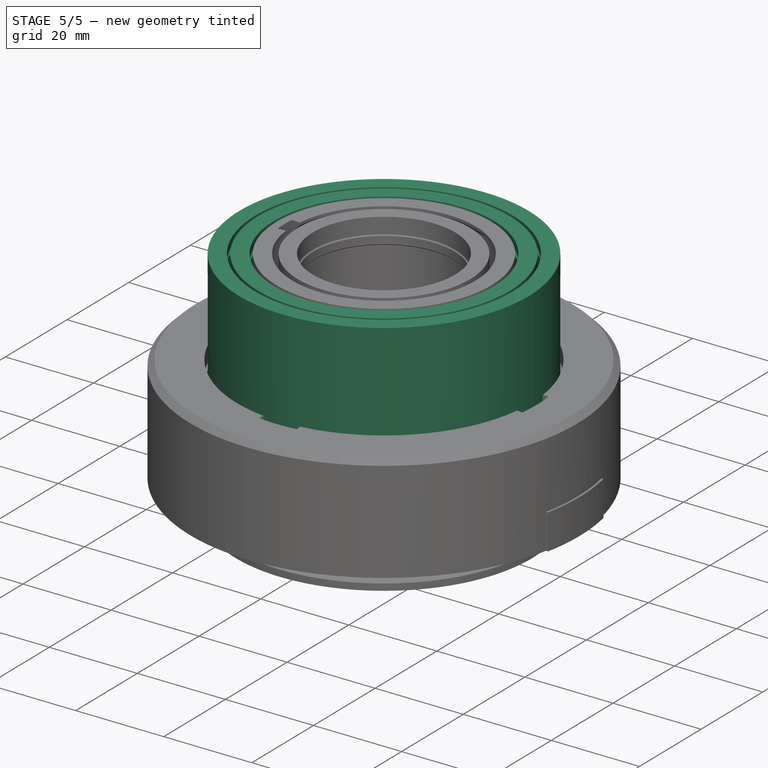
[diagram: stage 5 of 5 — iso view after this stage's code; geometry added in this stage tinted green]
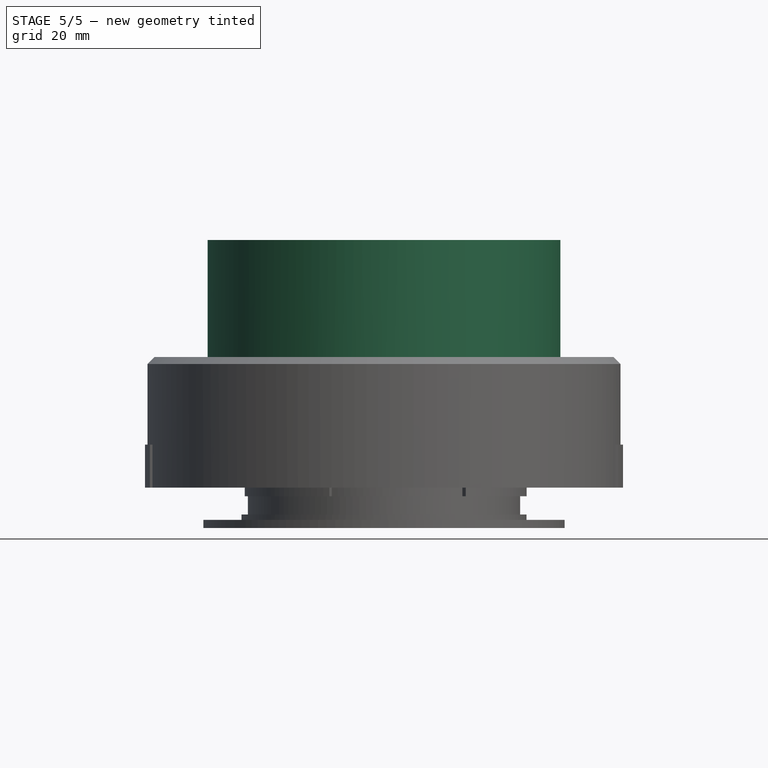
[diagram: stage 5 of 5 — front view after this stage's code; geometry added in this stage tinted green]
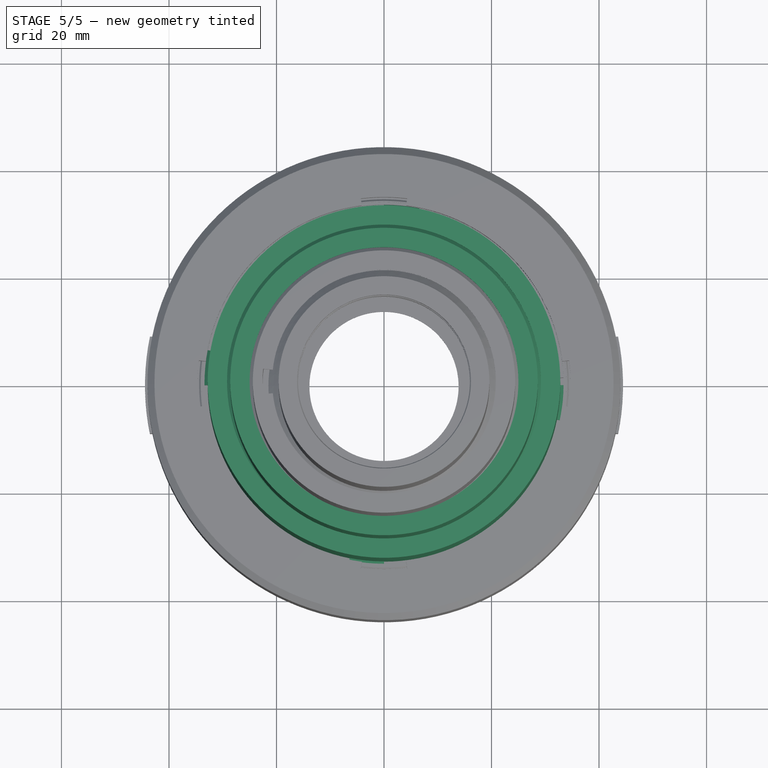
[diagram: stage 5 of 5 — top view after this stage's code; geometry added in this stage tinted green]
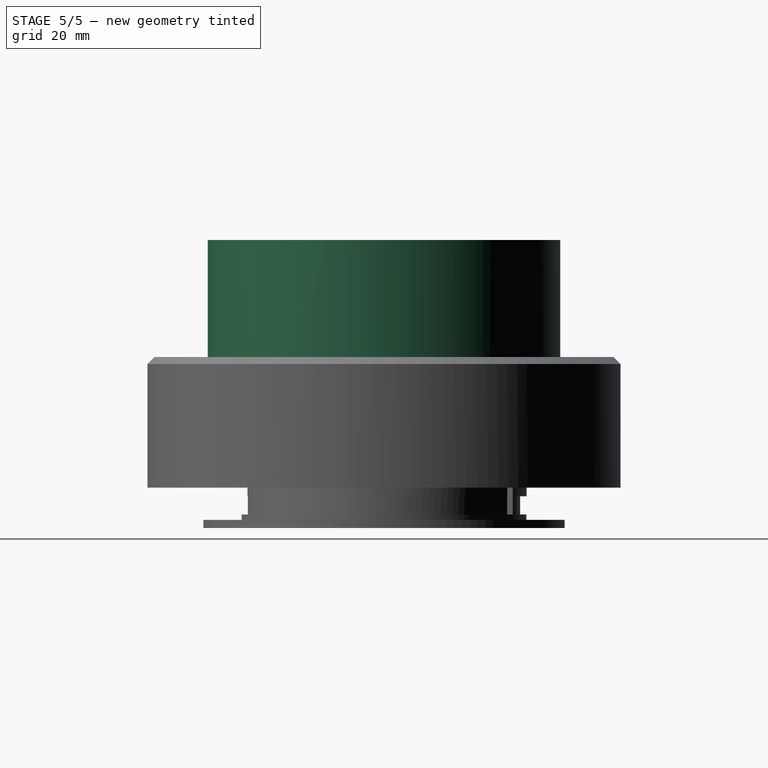
[diagram: stage 5 of 5 — right view after this stage's code; geometry added in this stage tinted green]
FEATURE [Sketcher::SketchObject] Sketch002  label="third-section"
  FullyConstrained = true
  MapMode = 5
  Placement = pos=(0,0,0) rot=(1,0,0;1.5708rad)
  Support = -> [XZ_Plane004]
  expr: Constraints[16] = Sketch.Constraints[16]
  expr: Constraints[18] = Sketch.Constraints[18]
  expr: Constraints[31] = Sketch.Constraints[31]
  expr: Constraints[32] = Sketch.Constraints[32]
  expr: Constraints[33] = Sketch.Constraints[33]
  expr: Constraints[34] = Sketch.Constraints[34]
  expr: Constraints[35] = Sketch.Constraints[35]
  expr: Constraints[36] = Sketch.Constraints[36]
  expr: Constraints[37] = Sketch.Constraints[37]
  expr: Constraints[38] = Sketch.Constraints[38]
  expr: Constraints[40] = Sketch.Constraints[40]
  expr: Constraints[41] = Sketch.Constraints[41]
  expr: Constraints[42] = Sketch.Constraints[42]
  expr: Constraints[43] = Sketch.Constraints[43]
  expr: Constraints[45] = Sketch.Constraints[45]
  expr: Constraints[46] = Sketch.Constraints[46]
  expr: Constraints[47] = Sketch.Constraints[47]
  expr: Constraints[49] = Sketch.Constraints[49]
  expr: Constraints[50] = Spreadsheet.third_tube_section_radius
  sketch-geometry (17):
    g0: LineSegment StartX=-32.8 StartY=46.0667 StartZ=0 EndX=-29.2 EndY=46.0667 EndZ=0
    g1: LineSegment StartX=-29.2 StartY=46.0667 StartZ=0 EndX=-29.2 EndY=44.2667 EndZ=0
    g2: LineSegment StartX=-29.2 StartY=44.2667 StartZ=0 EndX=-31 EndY=42.4667 EndZ=0
    g3: LineSegment StartX=-31 StartY=42.4667 StartZ=0 EndX=-31 EndY=42.0667 EndZ=0
    g4: LineSegment StartX=-31 StartY=42.0667 StartZ=0 EndX=-30.198 EndY=41.2647 EndZ=0
    g5: LineSegment StartX=-30.198 StartY=41.2647 StartZ=0 EndX=-30.198 EndY=40.0647 EndZ=0
    g6: LineSegment StartX=-30.198 StartY=40.0647 StartZ=0 EndX=-31 EndY=39.1089 EndZ=0
    g7: LineSegment StartX=-31 StartY=39.1089 StartZ=0 EndX=-31 EndY=3.6 EndZ=0
    g8: LineSegment StartX=-32.8 StartY=7.2 StartZ=0 EndX=-32.8 EndY=44.2667 EndZ=0
    g9: LineSegment StartX=-32.8 StartY=44.2667 StartZ=0 EndX=-32.8 EndY=46.0667 EndZ=0
    g10: LineSegment StartX=-32.8 StartY=7.2 StartZ=0 EndX=-34.6 EndY=5.4 EndZ=0
    g11: LineSegment StartX=-34.6 StartY=5.4 StartZ=0 EndX=-34.6 EndY=4.5 EndZ=0
    g12: LineSegment StartX=-34.6 StartY=4.5 StartZ=0 EndX=-32.8 EndY=2.7 EndZ=0
    g13: LineSegment StartX=-32.8 StartY=2.7 StartZ=0 EndX=-32.8 EndY=0 EndZ=0
    g14: LineSegment StartX=-32.8 StartY=0 StartZ=0 EndX=-29.2 EndY=0 EndZ=0
    g15: LineSegment StartX=-29.2 StartY=0 StartZ=0 EndX=-29.2 EndY=1.8 EndZ=0
    g16: LineSegment StartX=-29.2 StartY=1.8 StartZ=0 EndX=-31 EndY=3.6 EndZ=0
  constraints (51):
    c: Horizontal(g0)
    c: Coincident(g0,g1)
    c: Vertical(g1)
    c: Coincident(g1,g2)
    c: Coincident(g2,g3)
    c: Vertical(g3)
    c: Coincident(g3,g4)
    c: Coincident(g4,g5)
    c: Vertical(g5)
    c: Coincident(g5,g6)
    c: Coincident(g6,g7)
    c: Vertical(g7)
    c: Vertical(g8)
    c: Coincident(g8,g9)
    c: Vertical(g9)
    c: Coincident(g0,g9)
    c: DistanceX(g0,g0) = 3.6
    c: Horizontal(g1,g8)
    c: DistanceY(g1,g1) = 1.8
    c: Coincident(g8,g10)
    c: Coincident(g10,g11)
    c: Vertical(g11)
    c: Coincident(g11,g12)
    c: Coincident(g12,g13)
    c: Vertical(g13)
    c: Coincident(g13,g14)
    c: Horizontal(g14)
    c: Coincident(g14,g15)
    c: Vertical(g15)
    c: Coincident(g15,g16)
    c: Coincident(g16,g7)
    c: DistanceX(g14,g14) = 3.6
    c: DistanceY(g15,g15) = 1.8
    c: Angle(g16,g15) = 2.35619
    c: Angle(g12,g13) = 2.35619
    c: DistanceY(g13,g13) = 2.7
    c: DistanceX(g11,g12) = 1.8
    c: DistanceY(g11,g11) = 0.9
    c: Angle(g11,g10) = 2.35619
    c: Vertical(g8,g12)
    c: DistanceX(g7,g15) = 1.8
    c: Angle(g7,g6) = 2.44346
    c: DistanceY(g5,g5) = 1.2
    c: DistanceX(g3,g4) = 0.802
    c: Vertical(g6,g3)
    c: DistanceY(g3,g3) = 0.4
    c: Angle(g4,g3) = 2.35619
    c: Angle(g3,g2) = 2.35619
    c: PointOnObject(g14,g-1)
    c: DistanceY(g8,g8) = 37.0667
    c: DistanceX(g13,g-1) = 32.8
FEATURE [PartDesign::Revolution] Revolution001
  Angle = 360
  Axis = (0,-2e-16,1)
  Base = (0,0,0)
  Placement = pos=(0,0,0) rot=(1,0,0;1.5708rad)
  Profile = -> Sketch
  ReferenceAxis = -> Sketch [V_Axis]
FEATURE [PartDesign::Body] Body002  label="tube-second-section"
  Group = -> [Sketch,Revolution001]
  Origin = -> Origin003
  Tip = -> Revolution001
FEATURE [PartDesign::Revolution] Revolution002
  Angle = 360
  Axis = (0,-2e-16,1)
  Base = (0,0,0)
  Placement = pos=(0,0,0) rot=(1,0,0;1.5708rad)
  Profile = -> Sketch002
  ReferenceAxis = -> Sketch002 [V_Axis]
FEATURE [Sketcher::SketchObject] Sketch003
  FullyConstrained = true
  MapMode = 5
  Placement = pos=(0,0,0) rot=(1,0,0;1.5708rad)
  Support = -> [XZ_Plane004]
  expr: Constraints[10] = Spreadsheet.third_tube_section_radius
  sketch-geometry (4):
    g0: LineSegment StartX=-32.8 StartY=0 StartZ=0 EndX=-34.8 EndY=0 EndZ=0
    g1: LineSegment StartX=-34.8 StartY=0 StartZ=0 EndX=-34.8 EndY=10 EndZ=0
    g2: LineSegment StartX=-34.8 StartY=10 StartZ=0 EndX=-32.8 EndY=10 EndZ=0
    g3: LineSegment StartX=-32.8 StartY=10 StartZ=0 EndX=-32.8 EndY=0 EndZ=0
  constraints (12):
    c: Coincident(g0,g1)
    c: Coincident(g1,g2)
    c: Coincident(g2,g3)
    c: Coincident(g3,g0)
    c: Horizontal(g0)
    c: Horizontal(g2)
    c: Vertical(g1)
    c: Vertical(g3)
    c: PointOnObject(g0,g-1)
    c: DistanceX(g2,g2) = 2
    c: DistanceX(g0,g-1) = 32.8
    c: DistanceY(g1,g1) = 10
FEATURE [PartDesign::Groove] Groove
  Angle = 78.75
  Axis = (0,-2e-16,1)
  Base = (0,0,0)
  BaseFeature = -> Revolution002
  Placement = pos=(0,0,0) rot=(1,0,0;1.5708rad)
  Profile = -> Sketch003
  ReferenceAxis = -> Sketch003 [V_Axis]
  expr: Angle = 360 ° / 4 - 360 ° / 32
FEATURE [PartDesign::PolarPattern] PolarPattern
  Angle = 360
  Axis = -> Z_Axis004
  BaseFeature = -> Groove
  Occurrences = 4
  Originals = -> [Groove]
  Placement = pos=(0,0,0) rot=(1,0,0;1.5708rad)
FEATURE [PartDesign::Revolution] Revolution026
  Angle = 10
  Axis = (-2e-16,3e-16,1)
  Base = (0,0,0)
  BaseFeature = -> Groove002
  Midplane = true
  Placement = pos=(0,0,0) rot=(0.57735,0.57735,0.57735;2.0944rad)
  Profile = -> Sketch042
  ReferenceAxis = -> Sketch042 [V_Axis]
FEATURE [PartDesign::PolarPattern] PolarPattern003
  Angle = 360
  Axis = -> Z_Axis014
  BaseFeature = -> Revolution026
  Occurrences = 2
  Originals = -> [Revolution026]
  Placement = pos=(0,0,0) rot=(0.57735,0.57735,0.57735;2.0944rad)
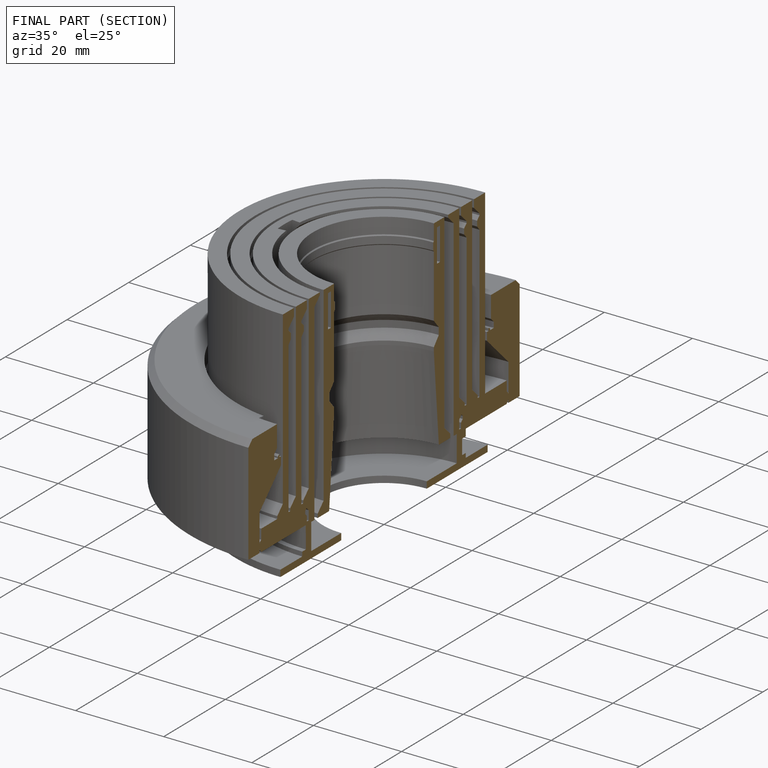
[diagram: finished part — half-section view (interior)]
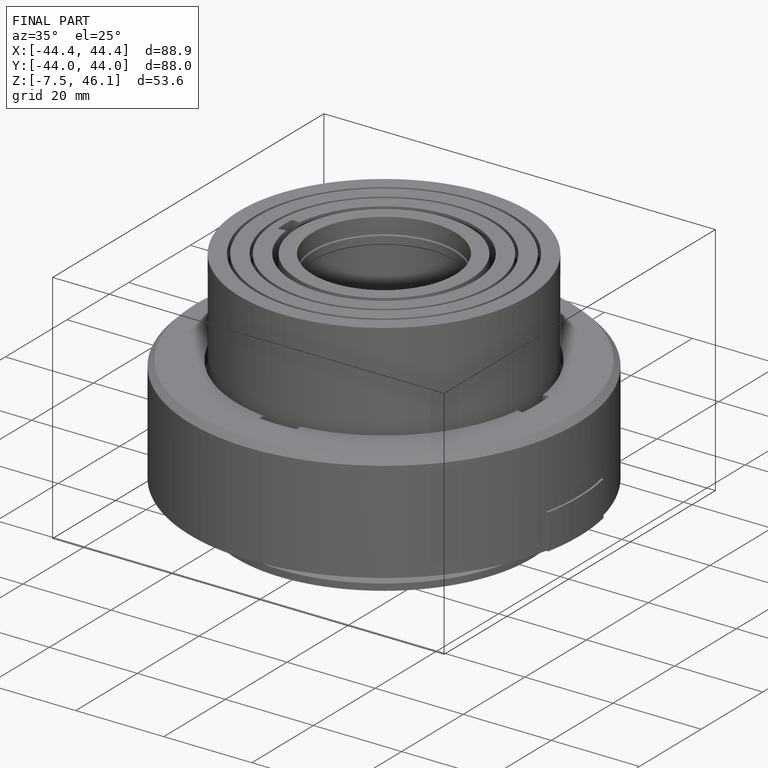
[diagram: finished part — iso view with bounding-box wireframe]
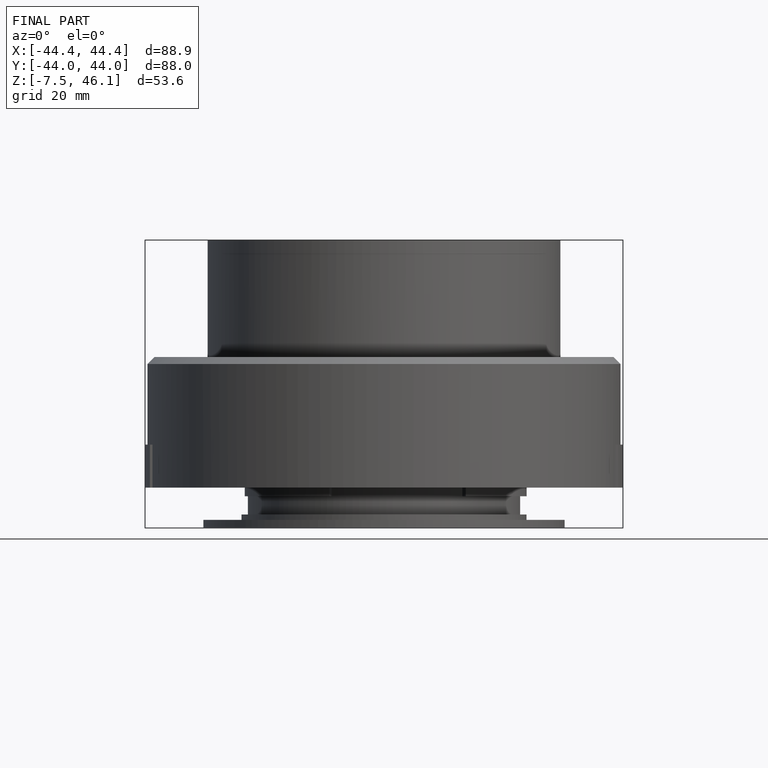
[diagram: finished part — front view with bounding-box wireframe]
